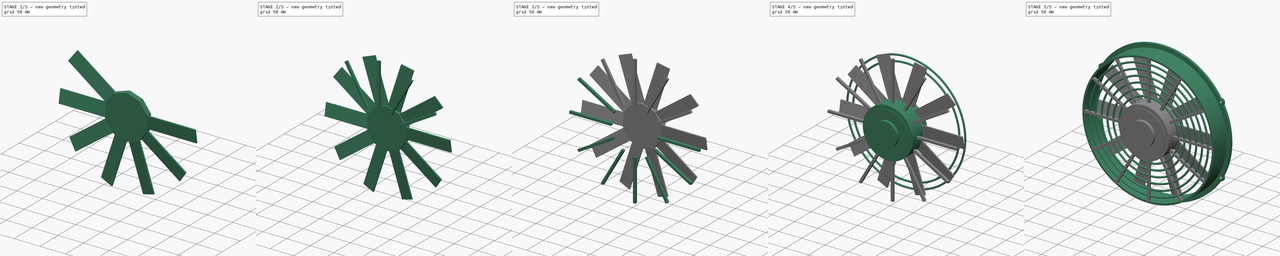
[diagram: build sequence overview — one tinted view per stage of 5, left to right]
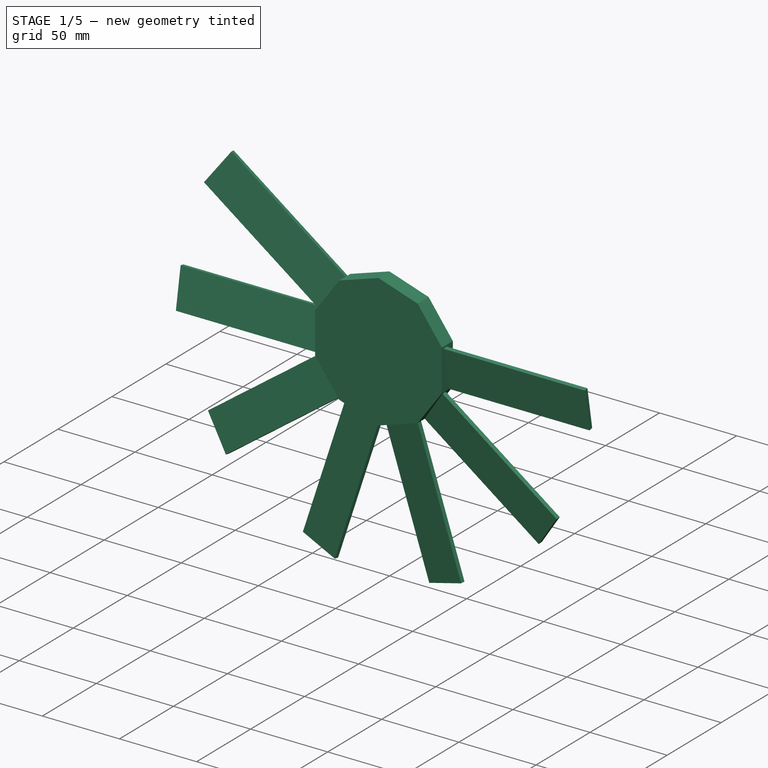
[diagram: stage 1 of 5 — iso view after this stage's code; geometry added in this stage tinted green]
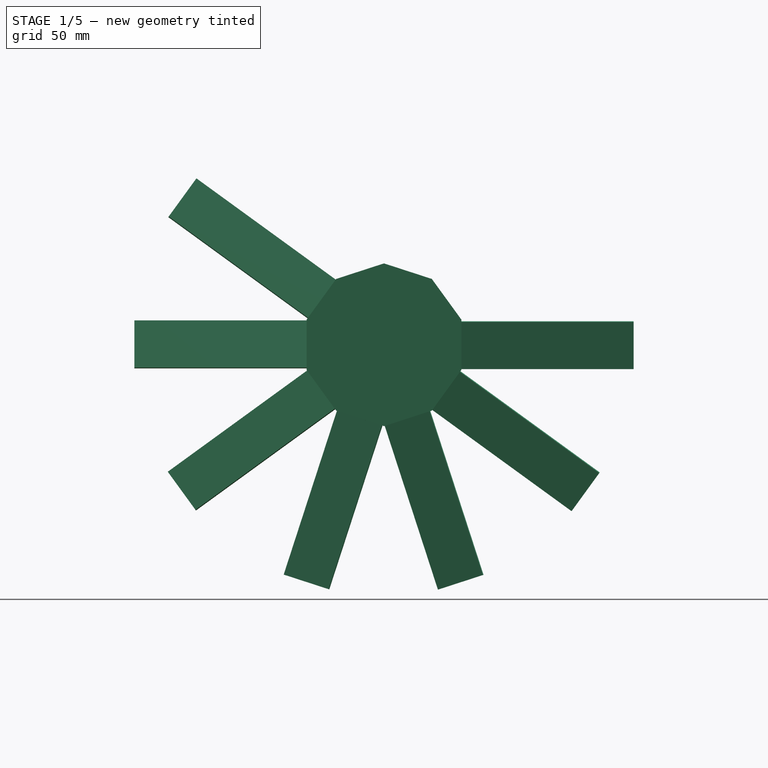
[diagram: stage 1 of 5 — front view after this stage's code; geometry added in this stage tinted green]
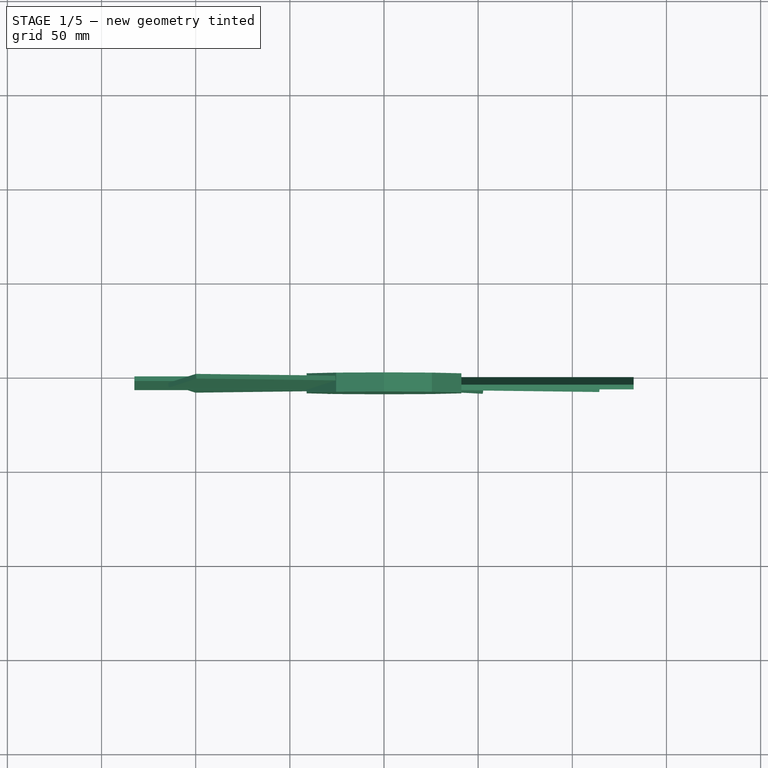
[diagram: stage 1 of 5 — top view after this stage's code; geometry added in this stage tinted green]
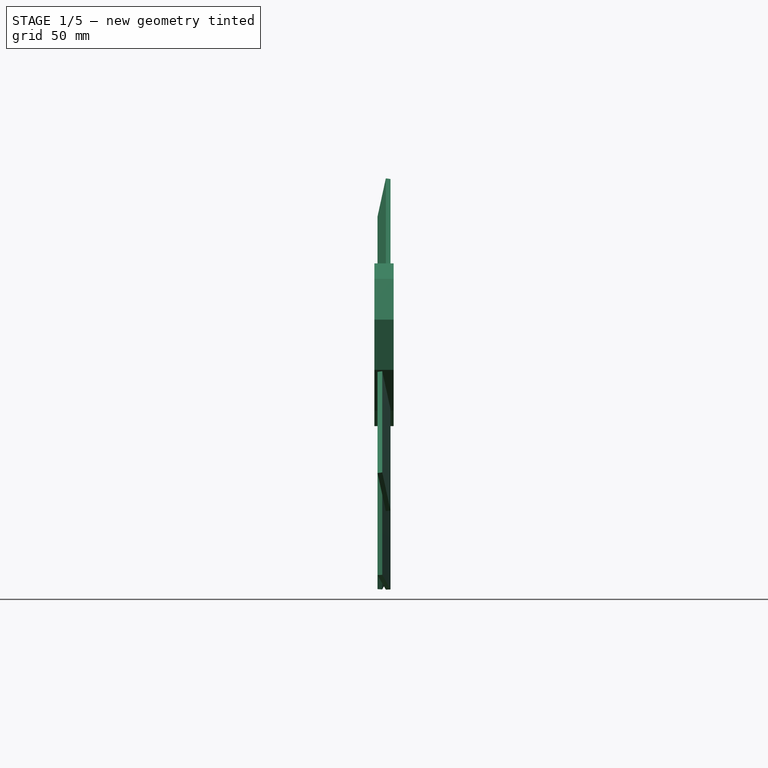
[diagram: stage 1 of 5 — right view after this stage's code; geometry added in this stage tinted green]
FCSTD DOCUMENT  (FreeCAD 0.16R6712 (Git))
Label: PC_fan_12inch
License: All rights reserved
LicenseURL: http://en.wikipedia.org/wiki/All_rights_reserved
objects: Sketcher::SketchObject×25, PartDesign::Pad×25, Part::MultiFuse×6, Part::Torus×6, Part::Cylinder×3
note: 90 computed .brp shape members not serialized (recipe doc carries the construction recipe); baked Part::Feature solids carry a one-line shape summary decoded from their .brp

FEATURE [Sketcher::SketchObject] Sketch014  label="blade_support_sketch"
  Placement = pos=(0,0,0) rot=(1,0,0;1.5708rad)
  sketch-geometry (22):
    g0: LineSegment [constr] StartX=0 StartY=-43.2131 StartZ=0 EndX=41.0981 EndY=-13.3536 EndZ=0
    g1: LineSegment [constr] StartX=41.0981 StartY=-13.3536 StartZ=0 EndX=25.4 EndY=34.9601 EndZ=0
    g2: LineSegment [constr] StartX=25.4 StartY=34.9601 StartZ=0 EndX=-25.4 EndY=34.9601 EndZ=0
    g3: LineSegment [constr] StartX=-25.4 StartY=34.9601 StartZ=0 EndX=-41.0981 EndY=-13.3536 EndZ=0
    g4: LineSegment [constr] StartX=-41.0981 StartY=-13.3536 StartZ=0 EndX=0 EndY=-43.2131 EndZ=0
    g5: Circle [constr] CenterX=0 CenterY=0 CenterZ=0 NormalX=0 NormalY=0 NormalZ=1 Radius=43.2131
    g6: LineSegment [constr] StartX=0 StartY=43.2131 StartZ=0 EndX=-41.0981 EndY=13.3536 EndZ=0
    g7: LineSegment [constr] StartX=-41.0981 StartY=13.3536 StartZ=0 EndX=-25.4 EndY=-34.9601 EndZ=0
    g8: LineSegment [constr] StartX=-25.4 StartY=-34.9601 StartZ=0 EndX=25.4 EndY=-34.9601 EndZ=0
    g9: LineSegment [constr] StartX=25.4 StartY=-34.9601 StartZ=0 EndX=41.0981 EndY=13.3536 EndZ=0
    g10: LineSegment [constr] StartX=41.0981 StartY=13.3536 StartZ=0 EndX=0 EndY=43.2131 EndZ=0
    g11: Circle [constr] CenterX=0 CenterY=0 CenterZ=0 NormalX=0 NormalY=0 NormalZ=1 Radius=43.2131
    g12: LineSegment StartX=0 StartY=43.2131 StartZ=0 EndX=25.4 EndY=34.9601 EndZ=0
    g13: LineSegment StartX=25.4 StartY=34.9601 StartZ=0 EndX=41.0981 EndY=13.3536 EndZ=0
    g14: LineSegment StartX=41.0981 StartY=13.3536 StartZ=0 EndX=41.0981 EndY=-13.3536 EndZ=0
    g15: LineSegment StartX=41.0981 StartY=-13.3536 StartZ=0 EndX=25.4 EndY=-34.9601 EndZ=0
    g16: LineSegment StartX=25.4 StartY=-34.9601 StartZ=0 EndX=0 EndY=-43.2131 EndZ=0
    g17: LineSegment StartX=0 StartY=-43.2131 StartZ=0 EndX=-25.4 EndY=-34.9601 EndZ=0
    g18: LineSegment StartX=-25.4 StartY=-34.9601 StartZ=0 EndX=-41.0981 EndY=-13.3536 EndZ=0
    g19: LineSegment StartX=-41.0981 StartY=-13.3536 StartZ=0 EndX=-41.0981 EndY=13.3536 EndZ=0
    g20: LineSegment StartX=-41.0981 StartY=13.3536 StartZ=0 EndX=-25.4 EndY=34.9601 EndZ=0
    g21: LineSegment StartX=-25.4 StartY=34.9601 StartZ=0 EndX=0 EndY=43.2131 EndZ=0
  constraints (48):
    c: Coincident(g0,g1)
    c: Coincident(g1,g2)
    c: Coincident(g2,g3)
    c: Coincident(g3,g4)
    c: Coincident(g4,g0)
    c: Equal(g0, g1-g4) x4
    c: PointOnObject(g0,g5)
    c: PointOnObject(g1,g5)
    c: PointOnObject(g2,g5)
    c: PointOnObject(g3,g5)
    c: PointOnObject(g4,g5)
    c: Coincident(g5,g-1)
    c: PointOnObject(g0,g-2)
    c: Distance(g2) = 50.8
    c: Coincident(g6,g7)
    c: Coincident(g7,g8)
    c: Coincident(g8,g9)
    c: Coincident(g9,g10)
    c: Coincident(g10,g6)
    c: Equal(g6, g7-g10) x4
    c: PointOnObject(g6,g11)
    c: PointOnObject(g7,g11)
    c: PointOnObject(g8,g11)
    c: PointOnObject(g9,g11)
    c: PointOnObject(g10,g11)
    c: Coincident(g11,g-1)
    c: PointOnObject(g6,g-2)
    c: Equal(g2,g10)
    c: Coincident(g12,g6)
    c: Coincident(g12,g1)
    c: Coincident(g13,g1)
    c: Coincident(g13,g9)
    c: Coincident(g14,g9)
    c: Coincident(g14,g0)
    c: Coincident(g15,g0)
    c: Coincident(g15,g8)
    c: Coincident(g16,g8)
    c: Coincident(g16,g0)
    c: Coincident(g17,g0)
    c: Coincident(g17,g7)
    c: Coincident(g18,g7)
    c: Coincident(g18,g3)
    c: Coincident(g19,g3)
    c: Coincident(g19,g6)
    c: Coincident(g20,g6)
    c: Coincident(g20,g2)
    c: Coincident(g21,g2)
    c: Coincident(g21,g6)
FEATURE [PartDesign::Pad] Pad001014  label="blade_support_pad"
  Length = 10.16
  Length2 = 100
  Placement = pos=(0,0,0) rot=(1,0,0;1.5708rad)
  Sketch = -> Sketch014
  Type = 0
FEATURE [PartDesign::Pad] Pad004  label="blade_pad_04"
  Length = 91.44
  Length2 = 100
  Placement = pos=(0,0,0) rot=(1,0,0;1.5708rad)
  Sketch = -> Sketch018
  Type = 0
FEATURE [PartDesign::Pad] Pad005  label="blade_pad_05"
  Length = 91.44
  Length2 = 100
  Placement = pos=(0,0,0) rot=(1,0,0;1.5708rad)
  Sketch = -> Sketch019
  Type = 0
FEATURE [PartDesign::Pad] Pad006  label="blade_pad_06"
  Length = 91.44
  Length2 = 100
  Placement = pos=(0,0,0) rot=(1,0,0;1.5708rad)
  Sketch = -> Sketch020
  Type = 0
FEATURE [PartDesign::Pad] Pad007  label="blade_pad_07"
  Length = 91.44
  Length2 = 100
  Placement = pos=(0,0,0) rot=(1,0,0;1.5708rad)
  Sketch = -> Sketch021
  Type = 0
FEATURE [PartDesign::Pad] Pad008  label="blade_pad_08"
  Length = 91.44
  Length2 = 100
  Placement = pos=(0,0,0) rot=(1,0,0;1.5708rad)
  Sketch = -> Sketch022
  Type = 0
FEATURE [PartDesign::Pad] Pad009  label="blade_pad_09"
  Length = 91.44
  Length2 = 100
  Placement = pos=(0,0,0) rot=(1,0,0;1.5708rad)
  Sketch = -> Sketch023
  Type = 0
FEATURE [PartDesign::Pad] Pad010  label="blade_pad_010"
  Length = 91.44
  Length2 = 100
  Placement = pos=(0,0,0) rot=(1,0,0;1.5708rad)
  Sketch = -> Sketch024
  Type = 0
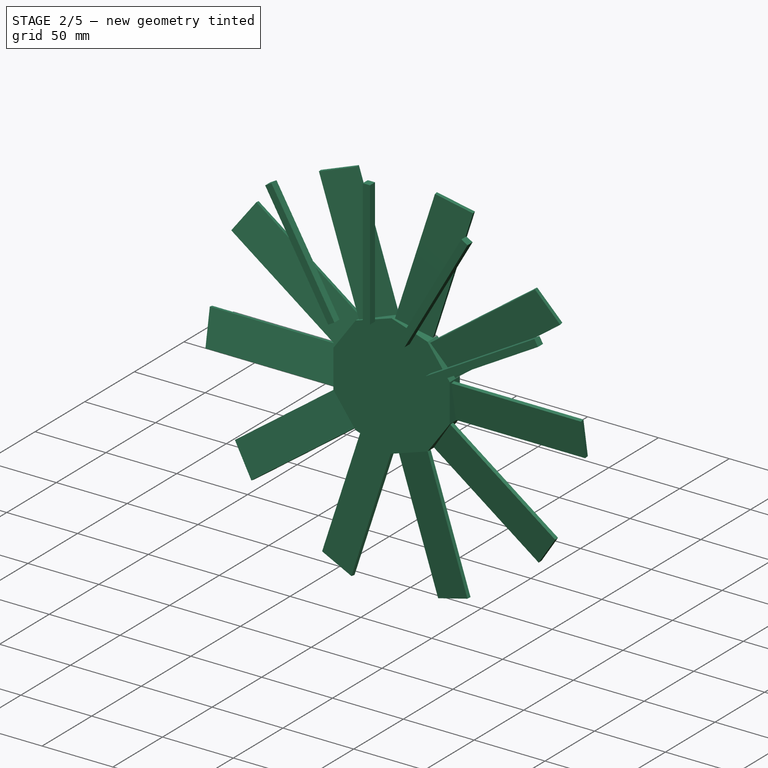
[diagram: stage 2 of 5 — iso view after this stage's code; geometry added in this stage tinted green]
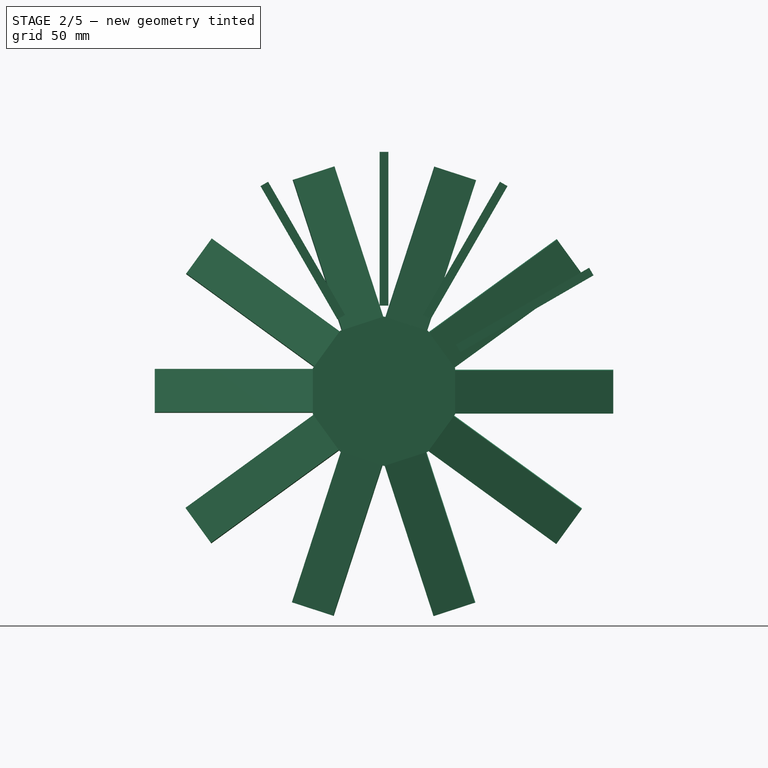
[diagram: stage 2 of 5 — front view after this stage's code; geometry added in this stage tinted green]
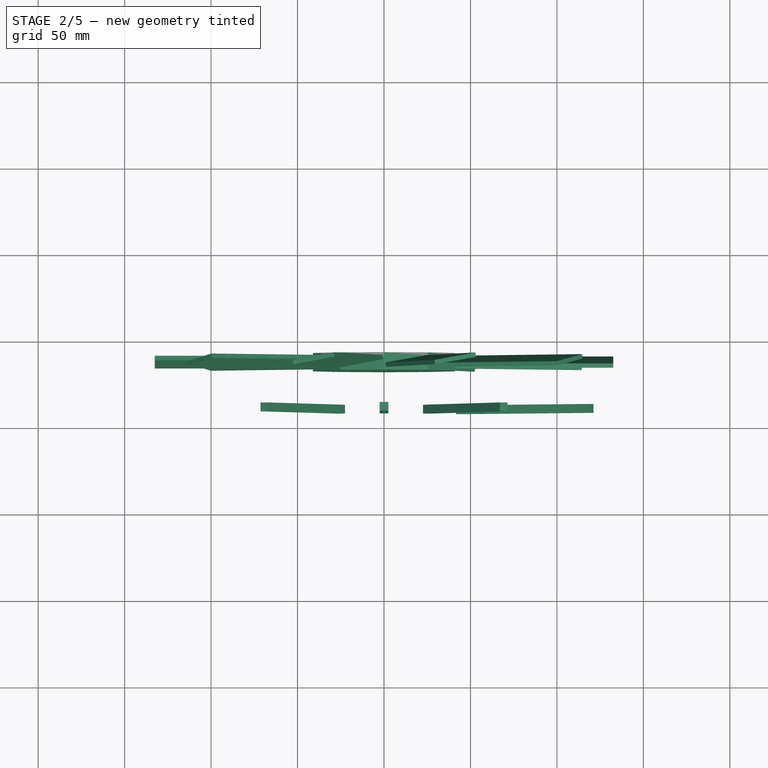
[diagram: stage 2 of 5 — top view after this stage's code; geometry added in this stage tinted green]
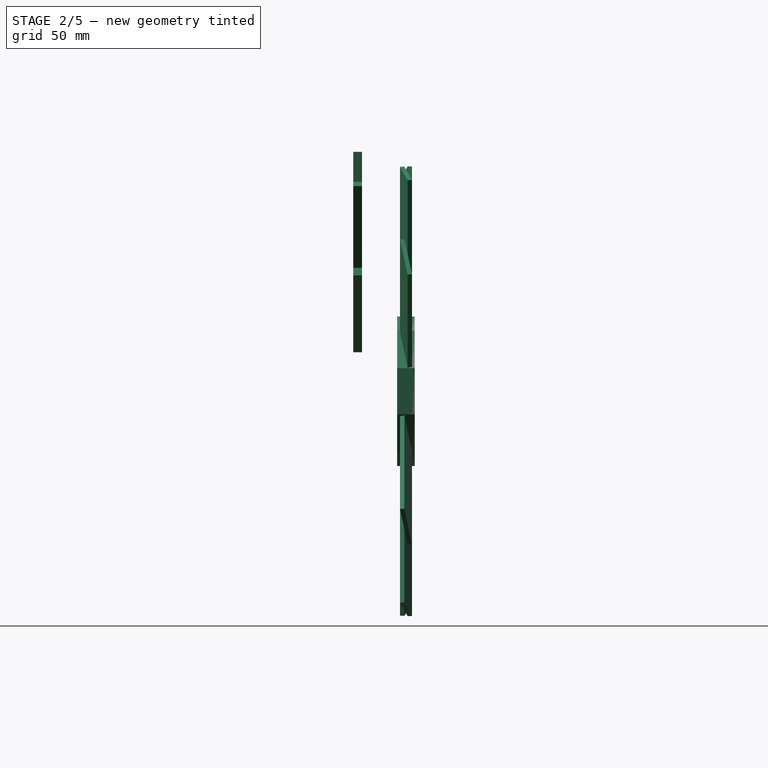
[diagram: stage 2 of 5 — right view after this stage's code; geometry added in this stage tinted green]
FEATURE [Sketcher::SketchObject] Sketch010  label="spoke_sketch_09"
  Placement = pos=(0,-39.37,0) rot=(1,0,0;1.5708rad)
  sketch-geometry (6):
    g0: LineSegment StartX=-26.9647 StartY=41.6242 StartZ=0 EndX=-71.4147 EndY=118.614 EndZ=0
    g1: LineSegment StartX=-71.4147 StartY=118.614 StartZ=0 EndX=-67.0153 EndY=121.154 EndZ=0
    g2: LineSegment StartX=-67.0153 StartY=121.154 StartZ=0 EndX=-22.5653 EndY=44.1642 EndZ=0
    g3: LineSegment StartX=-22.5653 StartY=44.1642 StartZ=0 EndX=-26.9647 EndY=41.6242 EndZ=0
    g4: GeomPoint [constr] X=-24.765 Y=42.8942 Z=0
    g5: LineSegment [constr] StartX=0 StartY=0 StartZ=0 EndX=-24.765 EndY=42.8942 EndZ=0
  constraints (16):
    c: Coincident(g0,g1)
    c: Coincident(g1,g2)
    c: Coincident(g2,g3)
    c: Coincident(g3,g0)
    c: Symmetric(g0,g2,g4)
    c: Distance(g3) = 5.08
    c: Coincident(g5,g-1)
    c: Distance(g5) = 49.53
    c: Coincident(g4,g5)
    c: Distance(g0) = 88.9
    c: Parallel(g5,g0)
    c: Parallel(g0,g2)
    c: Equal(g1,g3)
    c: Perpendicular(g2,g3)
    c: Equal(g0,g2)
    c: Angle(g5) = -4.18879
FEATURE [PartDesign::Pad] Pad001010  label="spoke_pad09"
  Length = 5.08
  Length2 = 100
  Placement = pos=(0,-39.37,0) rot=(1,0,0;1.5708rad)
  Sketch = -> Sketch010
  Type = 0
FEATURE [Sketcher::SketchObject] Sketch011  label="spoke_sketch_10"
  Placement = pos=(0,-39.37,0) rot=(1,0,0;1.5708rad)
  sketch-geometry (6):
    g0: LineSegment StartX=-2.54 StartY=49.53 StartZ=0 EndX=-2.54 EndY=138.43 EndZ=0
    g1: LineSegment StartX=-2.54 StartY=138.43 StartZ=0 EndX=2.54 EndY=138.43 EndZ=0
    g2: LineSegment StartX=2.54 StartY=138.43 StartZ=0 EndX=2.54 EndY=49.53 EndZ=0
    g3: LineSegment StartX=2.54 StartY=49.53 StartZ=0 EndX=-2.54 EndY=49.53 EndZ=0
    g4: GeomPoint [constr] X=0 Y=49.53 Z=0
    g5: LineSegment [constr] StartX=0 StartY=0 StartZ=0 EndX=0 EndY=49.53 EndZ=0
  constraints (16):
    c: Coincident(g0,g1)
    c: Coincident(g1,g2)
    c: Coincident(g2,g3)
    c: Coincident(g3,g0)
    c: Symmetric(g0,g2,g4)
    c: Distance(g3) = 5.08
    c: Coincident(g5,g-1)
    c: Distance(g5) = 49.53
    c: Coincident(g4,g5)
    c: Distance(g0) = 88.9
    c: Parallel(g5,g0)
    c: Parallel(g0,g2)
    c: Equal(g1,g3)
    c: Perpendicular(g2,g3)
    c: Equal(g0,g2)
    c: Angle(g5) = -4.71239
FEATURE [PartDesign::Pad] Pad001011  label="spoke_pad10"
  Length = 5.08
  Length2 = 100
  Placement = pos=(0,-39.37,0) rot=(1,0,0;1.5708rad)
  Sketch = -> Sketch011
  Type = 0
FEATURE [Sketcher::SketchObject] Sketch012  label="spoke_sketch_11"
  Placement = pos=(0,-39.37,0) rot=(1,0,0;1.5708rad)
  sketch-geometry (6):
    g0: LineSegment StartX=22.5653 StartY=44.1642 StartZ=0 EndX=67.0153 EndY=121.154 EndZ=0
    g1: LineSegment StartX=67.0153 StartY=121.154 StartZ=0 EndX=71.4147 EndY=118.614 EndZ=0
    g2: LineSegment StartX=71.4147 StartY=118.614 StartZ=0 EndX=26.9647 EndY=41.6242 EndZ=0
    g3: LineSegment StartX=26.9647 StartY=41.6242 StartZ=0 EndX=22.5653 EndY=44.1642 EndZ=0
    g4: GeomPoint [constr] X=24.765 Y=42.8942 Z=0
    g5: LineSegment [constr] StartX=0 StartY=0 StartZ=0 EndX=24.765 EndY=42.8942 EndZ=0
  constraints (16):
    c: Coincident(g0,g1)
    c: Coincident(g1,g2)
    c: Coincident(g2,g3)
    c: Coincident(g3,g0)
    c: Symmetric(g0,g2,g4)
    c: Distance(g3) = 5.08
    c: Coincident(g5,g-1)
    c: Distance(g5) = 49.53
    c: Coincident(g4,g5)
    c: Distance(g0) = 88.9
    c: Parallel(g5,g0)
    c: Parallel(g0,g2)
    c: Equal(g1,g3)
    c: Perpendicular(g2,g3)
    c: Equal(g0,g2)
    c: Angle(g5) = -5.23599
FEATURE [PartDesign::Pad] Pad001012  label="spoke_pad11"
  Length = 5.08
  Length2 = 100
  Placement = pos=(0,-39.37,0) rot=(1,0,0;1.5708rad)
  Sketch = -> Sketch012
  Type = 0
FEATURE [Sketcher::SketchObject] Sketch013  label="spoke_sketch_12"
  Placement = pos=(0,-39.37,0) rot=(1,0,0;1.5708rad)
  sketch-geometry (6):
    g0: LineSegment StartX=41.6242 StartY=26.9647 StartZ=0 EndX=118.614 EndY=71.4147 EndZ=0
    g1: LineSegment StartX=118.614 StartY=71.4147 StartZ=0 EndX=121.154 EndY=67.0153 EndZ=0
    g2: LineSegment StartX=121.154 StartY=67.0153 StartZ=0 EndX=44.1642 EndY=22.5653 EndZ=0
    g3: LineSegment StartX=44.1642 StartY=22.5653 StartZ=0 EndX=41.6242 EndY=26.9647 EndZ=0
    g4: GeomPoint [constr] X=42.8942 Y=24.765 Z=0
    g5: LineSegment [constr] StartX=0 StartY=0 StartZ=0 EndX=42.8942 EndY=24.765 EndZ=0
  constraints (16):
    c: Coincident(g0,g1)
    c: Coincident(g1,g2)
    c: Coincident(g2,g3)
    c: Coincident(g3,g0)
    c: Symmetric(g0,g2,g4)
    c: Distance(g3) = 5.08
    c: Coincident(g5,g-1)
    c: Distance(g5) = 49.53
    c: Coincident(g4,g5)
    c: Distance(g0) = 88.9
    c: Parallel(g5,g0)
    c: Parallel(g0,g2)
    c: Equal(g1,g3)
    c: Perpendicular(g2,g3)
    c: Equal(g0,g2)
    c: Angle(g5) = -5.75959
FEATURE [PartDesign::Pad] Pad001013  label="spoke_pad12"
  Length = 5.08
  Length2 = 100
  Placement = pos=(0,-39.37,0) rot=(1,0,0;1.5708rad)
  Sketch = -> Sketch013
  Type = 0
FEATURE [Sketcher::SketchObject] Sketch015  label="blade_sketch_01"
  Placement = pos=(33.249,0,24.1568) rot=(0.45399,0,0.891007;3.14159rad)
  Support = -> Pad001014 [Face2]
  sketch-geometry (6):
    g0: LineSegment StartX=-12.9481 StartY=4.10608 StartZ=0 EndX=12.066 EndY=8.51674 EndZ=0
    g1: LineSegment StartX=-12.5071 StartY=1.60467 StartZ=0 EndX=12.5071 EndY=6.01533 EndZ=0
    g2: LineSegment StartX=12.066 StartY=8.51674 StartZ=0 EndX=12.5071 EndY=6.01533 EndZ=0
    g3: LineSegment StartX=-12.9481 StartY=4.10608 StartZ=0 EndX=-12.5071 EndY=1.60467 EndZ=0
    g4: GeomPoint [constr] X=0 Y=3.81 Z=0
    g5: LineSegment [constr] StartX=0 StartY=0 StartZ=0 EndX=0 EndY=3.81 EndZ=0
  constraints (16):
    c: Distance(g0) = 25.4
    c: Angle(g0) = 0.174533
    c: Equal(g1,g0)
    c: Coincident(g2,g0)
    c: Coincident(g2,g1)
    c: Coincident(g3,g0)
    c: Coincident(g3,g1)
    c: Equal(g2,g3)
    c: Perpendicular(g0,g2)
    c: Distance(g3) = 2.54
    c: PointOnObject(g4,g1)
    c: Symmetric(g1,g1,g4)
    c: Coincident(g5,g-1)
    c: Vertical(g5)
    c: Distance(g5) = 3.81
    c: Coincident(g4,g5)
FEATURE [Sketcher::SketchObject] Sketch016  label="blade_sketch_02"
  Placement = pos=(12.7,0,39.0866) rot=(0.156434,0,0.987688;3.14159rad)
  Support = -> Pad001014 [Face1]
  sketch-geometry (6):
    g0: LineSegment StartX=-12.9481 StartY=4.10608 StartZ=0 EndX=12.066 EndY=8.51674 EndZ=0
    g1: LineSegment StartX=-12.5071 StartY=1.60467 StartZ=0 EndX=12.5071 EndY=6.01533 EndZ=0
    g2: LineSegment StartX=12.066 StartY=8.51674 StartZ=0 EndX=12.5071 EndY=6.01533 EndZ=0
    g3: LineSegment StartX=-12.9481 StartY=4.10608 StartZ=0 EndX=-12.5071 EndY=1.60467 EndZ=0
    g4: GeomPoint [constr] X=0 Y=3.81 Z=0
    g5: LineSegment [constr] StartX=0 StartY=0 StartZ=0 EndX=0 EndY=3.81 EndZ=0
  constraints (16):
    c: Distance(g0) = 25.4
    c: Angle(g0) = 0.174533
    c: Equal(g1,g0)
    c: Coincident(g2,g0)
    c: Coincident(g2,g1)
    c: Coincident(g3,g0)
    c: Coincident(g3,g1)
    c: Equal(g2,g3)
    c: Perpendicular(g0,g2)
    c: Distance(g3) = 2.54
    c: PointOnObject(g4,g1)
    c: Symmetric(g1,g1,g4)
    c: Coincident(g5,g-1)
    c: Vertical(g5)
    c: Distance(g5) = 3.81
    c: Coincident(g4,g5)
FEATURE [Sketcher::SketchObject] Sketch017  label="blade_sketch_03"
  Placement = pos=(-12.7,0,39.0866) rot=(-0.156434,0,0.987688;3.14159rad)
  Support = -> Pad001014 [Face10]
  sketch-geometry (6):
    g0: LineSegment StartX=-12.9481 StartY=4.10608 StartZ=0 EndX=12.066 EndY=8.51674 EndZ=0
    g1: LineSegment StartX=-12.5071 StartY=1.60467 StartZ=0 EndX=12.5071 EndY=6.01533 EndZ=0
    g2: LineSegment StartX=12.066 StartY=8.51674 StartZ=0 EndX=12.5071 EndY=6.01533 EndZ=0
    g3: LineSegment StartX=-12.9481 StartY=4.10608 StartZ=0 EndX=-12.5071 EndY=1.60467 EndZ=0
    g4: GeomPoint [constr] X=0 Y=3.81 Z=0
    g5: LineSegment [constr] StartX=0 StartY=0 StartZ=0 EndX=0 EndY=3.81 EndZ=0
  constraints (16):
    c: Distance(g0) = 25.4
    c: Angle(g0) = 0.174533
    c: Equal(g1,g0)
    c: Coincident(g2,g0)
    c: Coincident(g2,g1)
    c: Coincident(g3,g0)
    c: Coincident(g3,g1)
    c: Equal(g2,g3)
    c: Perpendicular(g0,g2)
    c: Distance(g3) = 2.54
    c: PointOnObject(g4,g1)
    c: Symmetric(g1,g1,g4)
    c: Coincident(g5,g-1)
    c: Vertical(g5)
    c: Distance(g5) = 3.81
    c: Coincident(g4,g5)
FEATURE [Sketcher::SketchObject] Sketch018  label="blade_sketch_04"
  Placement = pos=(-33.249,0,24.1568) rot=(-0.45399,0,0.891007;3.14159rad)
  Support = -> Pad001014 [Face9]
  sketch-geometry (6):
    g0: LineSegment StartX=-12.9481 StartY=4.10608 StartZ=0 EndX=12.066 EndY=8.51674 EndZ=0
    g1: LineSegment StartX=-12.5071 StartY=1.60467 StartZ=0 EndX=12.5071 EndY=6.01533 EndZ=0
    g2: LineSegment StartX=12.066 StartY=8.51674 StartZ=0 EndX=12.5071 EndY=6.01533 EndZ=0
    g3: LineSegment StartX=-12.9481 StartY=4.10608 StartZ=0 EndX=-12.5071 EndY=1.60467 EndZ=0
    g4: GeomPoint [constr] X=0 Y=3.81 Z=0
    g5: LineSegment [constr] StartX=0 StartY=0 StartZ=0 EndX=0 EndY=3.81 EndZ=0
  constraints (16):
    c: Distance(g0) = 25.4
    c: Angle(g0) = 0.174533
    c: Equal(g1,g0)
    c: Coincident(g2,g0)
    c: Coincident(g2,g1)
    c: Coincident(g3,g0)
    c: Coincident(g3,g1)
    c: Equal(g2,g3)
    c: Perpendicular(g0,g2)
    c: Distance(g3) = 2.54
    c: PointOnObject(g4,g1)
    c: Symmetric(g1,g1,g4)
    c: Coincident(g5,g-1)
    c: Vertical(g5)
    c: Distance(g5) = 3.81
    c: Coincident(g4,g5)
FEATURE [Sketcher::SketchObject] Sketch019  label="blade_sketch_05"
  Placement = pos=(-41.0981,0,-3e-12) rot=(0.707107,0,-0.707107;3.14159rad)
  Support = -> Pad001014 [Face8]
  sketch-geometry (6):
    g0: LineSegment StartX=-12.9481 StartY=4.10608 StartZ=0 EndX=12.066 EndY=8.51674 EndZ=0
    g1: LineSegment StartX=-12.5071 StartY=1.60467 StartZ=0 EndX=12.5071 EndY=6.01533 EndZ=0
    g2: LineSegment StartX=12.066 StartY=8.51674 StartZ=0 EndX=12.5071 EndY=6.01533 EndZ=0
    g3: LineSegment StartX=-12.9481 StartY=4.10608 StartZ=0 EndX=-12.5071 EndY=1.60467 EndZ=0
    g4: GeomPoint [constr] X=0 Y=3.81 Z=0
    g5: LineSegment [constr] StartX=0 StartY=0 StartZ=0 EndX=0 EndY=3.81 EndZ=0
  constraints (16):
    c: Distance(g0) = 25.4
    c: Angle(g0) = 0.174533
    c: Equal(g1,g0)
    c: Coincident(g2,g0)
    c: Coincident(g2,g1)
    c: Coincident(g3,g0)
    c: Coincident(g3,g1)
    c: Equal(g2,g3)
    c: Perpendicular(g0,g2)
    c: Distance(g3) = 2.54
    c: PointOnObject(g4,g1)
    c: Symmetric(g1,g1,g4)
    c: Coincident(g5,g-1)
    c: Vertical(g5)
    c: Distance(g5) = 3.81
    c: Coincident(g4,g5)
FEATURE [Sketcher::SketchObject] Sketch020  label="blade_sketch_06"
  Placement = pos=(-33.249,0,-24.1568) rot=(0.891007,0,-0.45399;3.14159rad)
  Support = -> Pad001014 [Face7]
  sketch-geometry (6):
    g0: LineSegment StartX=-12.9481 StartY=4.10608 StartZ=0 EndX=12.066 EndY=8.51674 EndZ=0
    g1: LineSegment StartX=-12.5071 StartY=1.60467 StartZ=0 EndX=12.5071 EndY=6.01533 EndZ=0
    g2: LineSegment StartX=12.066 StartY=8.51674 StartZ=0 EndX=12.5071 EndY=6.01533 EndZ=0
    g3: LineSegment StartX=-12.9481 StartY=4.10608 StartZ=0 EndX=-12.5071 EndY=1.60467 EndZ=0
    g4: GeomPoint [constr] X=0 Y=3.81 Z=0
    g5: LineSegment [constr] StartX=0 StartY=0 StartZ=0 EndX=0 EndY=3.81 EndZ=0
  constraints (16):
    c: Distance(g0) = 25.4
    c: Angle(g0) = 0.174533
    c: Equal(g1,g0)
    c: Coincident(g2,g0)
    c: Coincident(g2,g1)
    c: Coincident(g3,g0)
    c: Coincident(g3,g1)
    c: Equal(g2,g3)
    c: Perpendicular(g0,g2)
    c: Distance(g3) = 2.54
    c: PointOnObject(g4,g1)
    c: Symmetric(g1,g1,g4)
    c: Coincident(g5,g-1)
    c: Vertical(g5)
    c: Distance(g5) = 3.81
    c: Coincident(g4,g5)
FEATURE [Sketcher::SketchObject] Sketch021  label="blade_sketch_07"
  Placement = pos=(-12.7,0,-39.0866) rot=(0.987688,0,-0.156434;3.14159rad)
  Support = -> Pad001014 [Face6]
  sketch-geometry (6):
    g0: LineSegment StartX=-12.9481 StartY=4.10608 StartZ=0 EndX=12.066 EndY=8.51674 EndZ=0
    g1: LineSegment StartX=-12.5071 StartY=1.60467 StartZ=0 EndX=12.5071 EndY=6.01533 EndZ=0
    g2: LineSegment StartX=12.066 StartY=8.51674 StartZ=0 EndX=12.5071 EndY=6.01533 EndZ=0
    g3: LineSegment StartX=-12.9481 StartY=4.10608 StartZ=0 EndX=-12.5071 EndY=1.60467 EndZ=0
    g4: GeomPoint [constr] X=0 Y=3.81 Z=0
    g5: LineSegment [constr] StartX=0 StartY=0 StartZ=0 EndX=0 EndY=3.81 EndZ=0
  constraints (16):
    c: Distance(g0) = 25.4
    c: Angle(g0) = 0.174533
    c: Equal(g1,g0)
    c: Coincident(g2,g0)
    c: Coincident(g2,g1)
    c: Coincident(g3,g0)
    c: Coincident(g3,g1)
    c: Equal(g2,g3)
    c: Perpendicular(g0,g2)
    c: Distance(g3) = 2.54
    c: PointOnObject(g4,g1)
    c: Symmetric(g1,g1,g4)
    c: Coincident(g5,g-1)
    c: Vertical(g5)
    c: Distance(g5) = 3.81
    c: Coincident(g4,g5)
FEATURE [Sketcher::SketchObject] Sketch022  label="blade_sketch_08"
  Placement = pos=(12.7,0,-39.0866) rot=(0.987688,0,0.156434;3.14159rad)
  Support = -> Pad001014 [Face5]
  sketch-geometry (6):
    g0: LineSegment StartX=-12.9481 StartY=4.10608 StartZ=0 EndX=12.066 EndY=8.51674 EndZ=0
    g1: LineSegment StartX=-12.5071 StartY=1.60467 StartZ=0 EndX=12.5071 EndY=6.01533 EndZ=0
    g2: LineSegment StartX=12.066 StartY=8.51674 StartZ=0 EndX=12.5071 EndY=6.01533 EndZ=0
    g3: LineSegment StartX=-12.9481 StartY=4.10608 StartZ=0 EndX=-12.5071 EndY=1.60467 EndZ=0
    g4: GeomPoint [constr] X=0 Y=3.81 Z=0
    g5: LineSegment [constr] StartX=0 StartY=0 StartZ=0 EndX=0 EndY=3.81 EndZ=0
  constraints (16):
    c: Distance(g0) = 25.4
    c: Angle(g0) = 0.174533
    c: Equal(g1,g0)
    c: Coincident(g2,g0)
    c: Coincident(g2,g1)
    c: Coincident(g3,g0)
    c: Coincident(g3,g1)
    c: Equal(g2,g3)
    c: Perpendicular(g0,g2)
    c: Distance(g3) = 2.54
    c: PointOnObject(g4,g1)
    c: Symmetric(g1,g1,g4)
    c: Coincident(g5,g-1)
    c: Vertical(g5)
    c: Distance(g5) = 3.81
    c: Coincident(g4,g5)
FEATURE [Sketcher::SketchObject] Sketch023  label="blade_sketch_09"
  Placement = pos=(33.249,0,-24.1568) rot=(0.891007,0,0.45399;3.14159rad)
  Support = -> Pad001014 [Face4]
  sketch-geometry (6):
    g0: LineSegment StartX=-12.9481 StartY=4.10608 StartZ=0 EndX=12.066 EndY=8.51674 EndZ=0
    g1: LineSegment StartX=-12.5071 StartY=1.60467 StartZ=0 EndX=12.5071 EndY=6.01533 EndZ=0
    g2: LineSegment StartX=12.066 StartY=8.51674 StartZ=0 EndX=12.5071 EndY=6.01533 EndZ=0
    g3: LineSegment StartX=-12.9481 StartY=4.10608 StartZ=0 EndX=-12.5071 EndY=1.60467 EndZ=0
    g4: GeomPoint [constr] X=0 Y=3.81 Z=0
    g5: LineSegment [constr] StartX=0 StartY=0 StartZ=0 EndX=0 EndY=3.81 EndZ=0
  constraints (16):
    c: Distance(g0) = 25.4
    c: Angle(g0) = 0.174533
    c: Equal(g1,g0)
    c: Coincident(g2,g0)
    c: Coincident(g2,g1)
    c: Coincident(g3,g0)
    c: Coincident(g3,g1)
    c: Equal(g2,g3)
    c: Perpendicular(g0,g2)
    c: Distance(g3) = 2.54
    c: PointOnObject(g4,g1)
    c: Symmetric(g1,g1,g4)
    c: Coincident(g5,g-1)
    c: Vertical(g5)
    c: Distance(g5) = 3.81
    c: Coincident(g4,g5)
FEATURE [Sketcher::SketchObject] Sketch024  label="blade_sketch_010"
  Placement = pos=(41.0981,0,-2e-12) rot=(0.707107,0,0.707107;3.14159rad)
  Support = -> Pad001014 [Face3]
  sketch-geometry (6):
    g0: LineSegment StartX=-12.9481 StartY=4.10608 StartZ=0 EndX=12.066 EndY=8.51674 EndZ=0
    g1: LineSegment StartX=-12.5071 StartY=1.60467 StartZ=0 EndX=12.5071 EndY=6.01533 EndZ=0
    g2: LineSegment StartX=12.066 StartY=8.51674 StartZ=0 EndX=12.5071 EndY=6.01533 EndZ=0
    g3: LineSegment StartX=-12.9481 StartY=4.10608 StartZ=0 EndX=-12.5071 EndY=1.60467 EndZ=0
    g4: GeomPoint [constr] X=0 Y=3.81 Z=0
    g5: LineSegment [constr] StartX=0 StartY=0 StartZ=0 EndX=0 EndY=3.81 EndZ=0
  constraints (16):
    c: Distance(g0) = 25.4
    c: Angle(g0) = 0.174533
    c: Equal(g1,g0)
    c: Coincident(g2,g0)
    c: Coincident(g2,g1)
    c: Coincident(g3,g0)
    c: Coincident(g3,g1)
    c: Equal(g2,g3)
    c: Perpendicular(g0,g2)
    c: Distance(g3) = 2.54
    c: PointOnObject(g4,g1)
    c: Symmetric(g1,g1,g4)
    c: Coincident(g5,g-1)
    c: Vertical(g5)
    c: Distance(g5) = 3.81
    c: Coincident(g4,g5)
FEATURE [PartDesign::Pad] Pad001015  label="blade_pad_01"
  Length = 91.44
  Length2 = 100
  Placement = pos=(0,0,0) rot=(1,0,0;1.5708rad)
  Sketch = -> Sketch015
  Type = 0
FEATURE [PartDesign::Pad] Pad002  label="blade_pad_02"
  Length = 91.44
  Length2 = 100
  Placement = pos=(0,0,0) rot=(1,0,0;1.5708rad)
  Sketch = -> Sketch016
  Type = 0
FEATURE [PartDesign::Pad] Pad003  label="blade_pad_03"
  Length = 91.44
  Length2 = 100
  Placement = pos=(0,0,0) rot=(1,0,0;1.5708rad)
  Sketch = -> Sketch017
  Type = 0
FEATURE [Part::MultiFuse] Fusion002002002  label="blade_fusion"
  Placement = pos=(0,-8.89,0) rot=(0,0,1;0rad)
  Shapes = -> [Pad010,Pad009,Pad008,Pad007,Pad006,Pad005,Pad004,Pad003,Pad002,Pad001015]
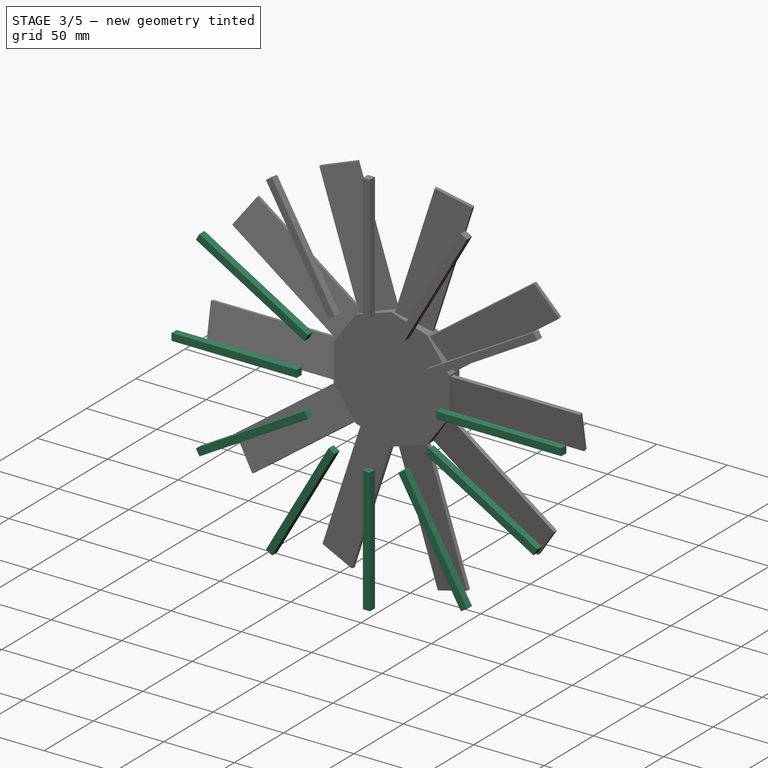
[diagram: stage 3 of 5 — iso view after this stage's code; geometry added in this stage tinted green]
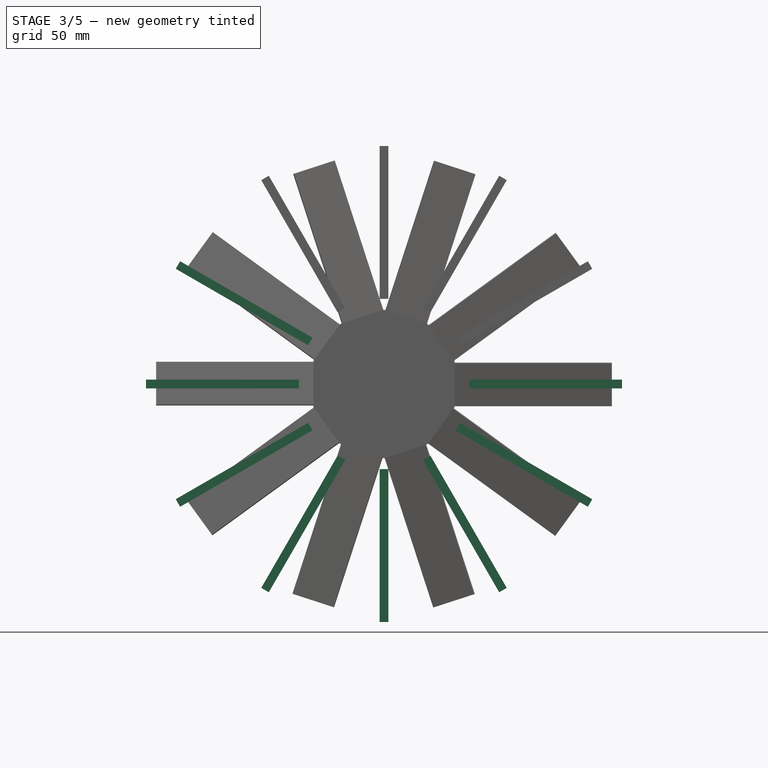
[diagram: stage 3 of 5 — front view after this stage's code; geometry added in this stage tinted green]
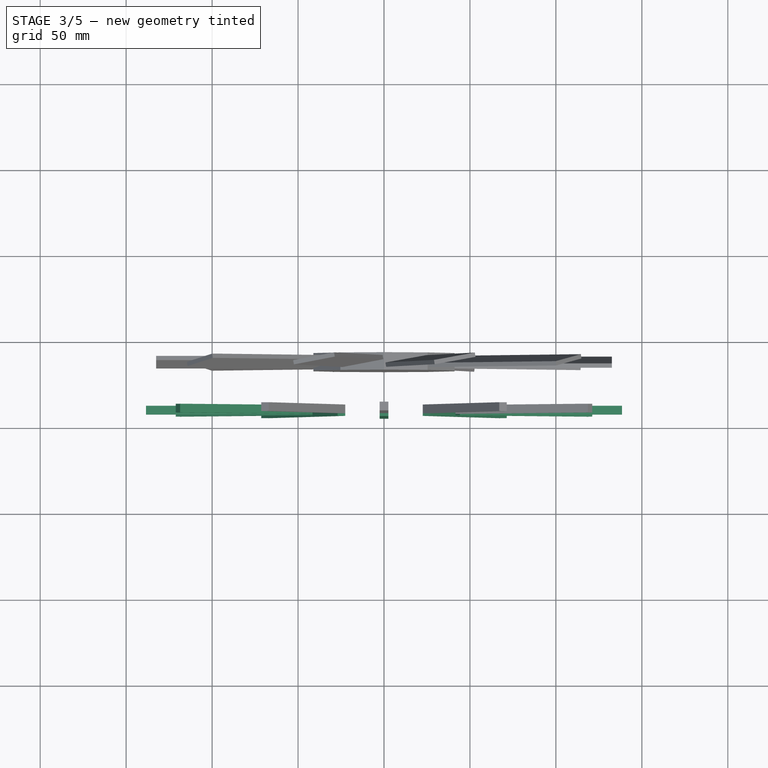
[diagram: stage 3 of 5 — top view after this stage's code; geometry added in this stage tinted green]
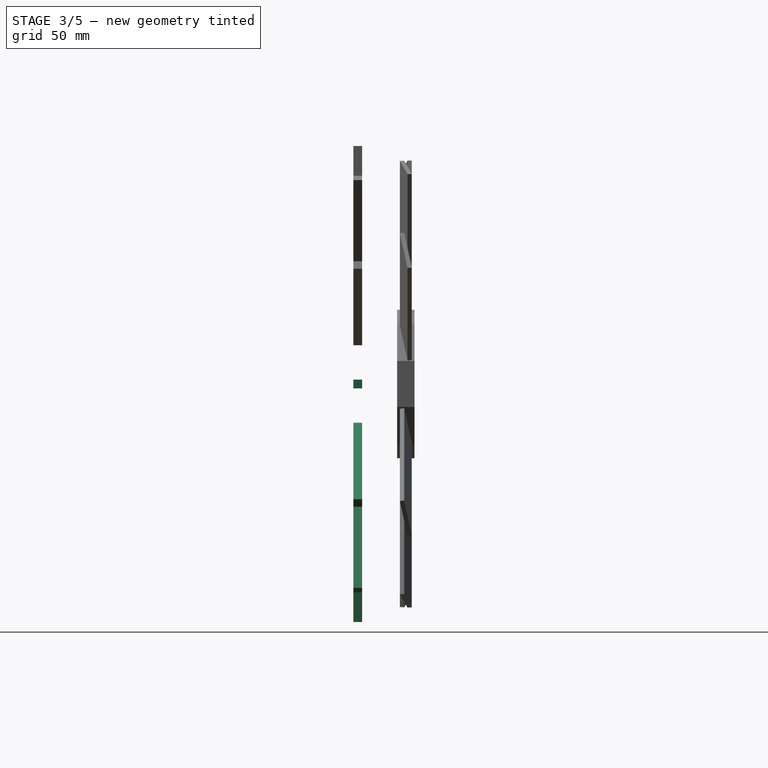
[diagram: stage 3 of 5 — right view after this stage's code; geometry added in this stage tinted green]
FEATURE [Sketcher::SketchObject] Sketch002  label="spoke_sketch01"
  Placement = pos=(0,-39.37,0) rot=(1,0,0;1.5708rad)
  sketch-geometry (6):
    g0: LineSegment StartX=49.53 StartY=2.54 StartZ=0 EndX=138.43 EndY=2.54 EndZ=0
    g1: LineSegment StartX=138.43 StartY=2.54 StartZ=0 EndX=138.43 EndY=-2.54 EndZ=0
    g2: LineSegment StartX=138.43 StartY=-2.54 StartZ=0 EndX=49.53 EndY=-2.54 EndZ=0
    g3: LineSegment StartX=49.53 StartY=-2.54 StartZ=0 EndX=49.53 EndY=2.54 EndZ=0
    g4: GeomPoint [constr] X=49.53 Y=0 Z=0
    g5: LineSegment [constr] StartX=0 StartY=0 StartZ=0 EndX=49.53 EndY=0 EndZ=0
  constraints (16):
    c: Coincident(g0,g1)
    c: Coincident(g1,g2)
    c: Coincident(g2,g3)
    c: Coincident(g3,g0)
    c: Horizontal(g0)
    c: Horizontal(g2)
    c: Vertical(g1)
    c: Vertical(g3)
    c: PointOnObject(g4,g3)
    c: Symmetric(g0,g2,g4)
    c: Distance(g3) = 5.08
    c: Coincident(g5,g-1)
    c: Horizontal(g5)
    c: Distance(g5) = 49.53
    c: Coincident(g4,g5)
    c: Distance(g0) = 88.9
FEATURE [PartDesign::Pad] Pad001002  label="spoke_pad01"
  Length = 5.08
  Length2 = 100
  Placement = pos=(0,-39.37,0) rot=(1,0,0;1.5708rad)
  Sketch = -> Sketch002
  Type = 0
FEATURE [Sketcher::SketchObject] Sketch003  label="spoke_sketch_02"
  Placement = pos=(0,-39.37,0) rot=(1,0,0;1.5708rad)
  sketch-geometry (6):
    g0: LineSegment StartX=44.1642 StartY=-22.5653 StartZ=0 EndX=121.154 EndY=-67.0153 EndZ=0
    g1: LineSegment StartX=121.154 StartY=-67.0153 StartZ=0 EndX=118.614 EndY=-71.4147 EndZ=0
    g2: LineSegment StartX=118.614 StartY=-71.4147 StartZ=0 EndX=41.6242 EndY=-26.9647 EndZ=0
    g3: LineSegment StartX=41.6242 StartY=-26.9647 StartZ=0 EndX=44.1642 EndY=-22.5653 EndZ=0
    g4: GeomPoint [constr] X=42.8942 Y=-24.765 Z=0
    g5: LineSegment [constr] StartX=0 StartY=0 StartZ=0 EndX=42.8942 EndY=-24.765 EndZ=0
  constraints (16):
    c: Coincident(g0,g1)
    c: Coincident(g1,g2)
    c: Coincident(g2,g3)
    c: Coincident(g3,g0)
    c: Symmetric(g0,g2,g4)
    c: Distance(g3) = 5.08
    c: Coincident(g5,g-1)
    c: Distance(g5) = 49.53
    c: Coincident(g4,g5)
    c: Distance(g0) = 88.9
    c: Parallel(g5,g0)
    c: Parallel(g0,g2)
    c: Equal(g1,g3)
    c: Perpendicular(g2,g3)
    c: Equal(g0,g2)
    c: Angle(g5) = -0.523599
FEATURE [PartDesign::Pad] Pad001003  label="spoke_pad02"
  Length = 5.08
  Length2 = 100
  Placement = pos=(0,-39.37,0) rot=(1,0,0;1.5708rad)
  Sketch = -> Sketch003
  Type = 0
FEATURE [Sketcher::SketchObject] Sketch004  label="spoke_sketch_03"
  Placement = pos=(0,-39.37,0) rot=(1,0,0;1.5708rad)
  sketch-geometry (6):
    g0: LineSegment StartX=26.9647 StartY=-41.6242 StartZ=0 EndX=71.4147 EndY=-118.614 EndZ=0
    g1: LineSegment StartX=71.4147 StartY=-118.614 StartZ=0 EndX=67.0153 EndY=-121.154 EndZ=0
    g2: LineSegment StartX=67.0153 StartY=-121.154 StartZ=0 EndX=22.5653 EndY=-44.1642 EndZ=0
    g3: LineSegment StartX=22.5653 StartY=-44.1642 StartZ=0 EndX=26.9647 EndY=-41.6242 EndZ=0
    g4: GeomPoint [constr] X=24.765 Y=-42.8942 Z=0
    g5: LineSegment [constr] StartX=0 StartY=0 StartZ=0 EndX=24.765 EndY=-42.8942 EndZ=0
  constraints (16):
    c: Coincident(g0,g1)
    c: Coincident(g1,g2)
    c: Coincident(g2,g3)
    c: Coincident(g3,g0)
    c: Symmetric(g0,g2,g4)
    c: Distance(g3) = 5.08
    c: Coincident(g5,g-1)
    c: Distance(g5) = 49.53
    c: Coincident(g4,g5)
    c: Distance(g0) = 88.9
    c: Parallel(g5,g0)
    c: Parallel(g0,g2)
    c: Equal(g1,g3)
    c: Perpendicular(g2,g3)
    c: Equal(g0,g2)
    c: Angle(g5) = -1.0472
FEATURE [PartDesign::Pad] Pad001004  label="spoke_pad03"
  Length = 5.08
  Length2 = 100
  Placement = pos=(0,-39.37,0) rot=(1,0,0;1.5708rad)
  Sketch = -> Sketch004
  Type = 0
FEATURE [Sketcher::SketchObject] Sketch005  label="spoke_sketch_04"
  Placement = pos=(0,-39.37,0) rot=(1,0,0;1.5708rad)
  sketch-geometry (6):
    g0: LineSegment StartX=2.54 StartY=-49.53 StartZ=0 EndX=2.54 EndY=-138.43 EndZ=0
    g1: LineSegment StartX=2.54 StartY=-138.43 StartZ=0 EndX=-2.54 EndY=-138.43 EndZ=0
    g2: LineSegment StartX=-2.54 StartY=-138.43 StartZ=0 EndX=-2.54 EndY=-49.53 EndZ=0
    g3: LineSegment StartX=-2.54 StartY=-49.53 StartZ=0 EndX=2.54 EndY=-49.53 EndZ=0
    g4: GeomPoint [constr] X=0 Y=-49.53 Z=0
    g5: LineSegment [constr] StartX=0 StartY=0 StartZ=0 EndX=0 EndY=-49.53 EndZ=0
  constraints (16):
    c: Coincident(g0,g1)
    c: Coincident(g1,g2)
    c: Coincident(g2,g3)
    c: Coincident(g3,g0)
    c: Symmetric(g0,g2,g4)
    c: Distance(g3) = 5.08
    c: Coincident(g5,g-1)
    c: Distance(g5) = 49.53
    c: Coincident(g4,g5)
    c: Distance(g0) = 88.9
    c: Parallel(g5,g0)
    c: Parallel(g0,g2)
    c: Equal(g1,g3)
    c: Perpendicular(g2,g3)
    c: Equal(g0,g2)
    c: Angle(g5) = -1.5708
FEATURE [PartDesign::Pad] Pad001005  label="spoke_pad04"
  Length = 5.08
  Length2 = 100
  Placement = pos=(0,-39.37,0) rot=(1,0,0;1.5708rad)
  Sketch = -> Sketch005
  Type = 0
FEATURE [Sketcher::SketchObject] Sketch006  label="spoke_sketch_05"
  Placement = pos=(0,-39.37,0) rot=(1,0,0;1.5708rad)
  sketch-geometry (6):
    g0: LineSegment StartX=-22.5653 StartY=-44.1642 StartZ=0 EndX=-67.0153 EndY=-121.154 EndZ=0
    g1: LineSegment StartX=-67.0153 StartY=-121.154 StartZ=0 EndX=-71.4147 EndY=-118.614 EndZ=0
    g2: LineSegment StartX=-71.4147 StartY=-118.614 StartZ=0 EndX=-26.9647 EndY=-41.6242 EndZ=0
    g3: LineSegment StartX=-26.9647 StartY=-41.6242 StartZ=0 EndX=-22.5653 EndY=-44.1642 EndZ=0
    g4: GeomPoint [constr] X=-24.765 Y=-42.8942 Z=0
    g5: LineSegment [constr] StartX=0 StartY=0 StartZ=0 EndX=-24.765 EndY=-42.8942 EndZ=0
  constraints (16):
    c: Coincident(g0,g1)
    c: Coincident(g1,g2)
    c: Coincident(g2,g3)
    c: Coincident(g3,g0)
    c: Symmetric(g0,g2,g4)
    c: Distance(g3) = 5.08
    c: Coincident(g5,g-1)
    c: Distance(g5) = 49.53
    c: Coincident(g4,g5)
    c: Distance(g0) = 88.9
    c: Parallel(g5,g0)
    c: Parallel(g0,g2)
    c: Equal(g1,g3)
    c: Perpendicular(g2,g3)
    c: Equal(g0,g2)
    c: Angle(g5) = -2.0944
FEATURE [PartDesign::Pad] Pad001006  label="spoke_pad05"
  Length = 5.08
  Length2 = 100
  Placement = pos=(0,-39.37,0) rot=(1,0,0;1.5708rad)
  Sketch = -> Sketch006
  Type = 0
FEATURE [Sketcher::SketchObject] Sketch007  label="spoke_sketch_06"
  Placement = pos=(0,-39.37,0) rot=(1,0,0;1.5708rad)
  sketch-geometry (6):
    g0: LineSegment StartX=-41.6242 StartY=-26.9647 StartZ=0 EndX=-118.614 EndY=-71.4147 EndZ=0
    g1: LineSegment StartX=-118.614 StartY=-71.4147 StartZ=0 EndX=-121.154 EndY=-67.0153 EndZ=0
    g2: LineSegment StartX=-121.154 StartY=-67.0153 StartZ=0 EndX=-44.1642 EndY=-22.5653 EndZ=0
    g3: LineSegment StartX=-44.1642 StartY=-22.5653 StartZ=0 EndX=-41.6242 EndY=-26.9647 EndZ=0
    g4: GeomPoint [constr] X=-42.8942 Y=-24.765 Z=0
    g5: LineSegment [constr] StartX=0 StartY=0 StartZ=0 EndX=-42.8942 EndY=-24.765 EndZ=0
  constraints (16):
    c: Coincident(g0,g1)
    c: Coincident(g1,g2)
    c: Coincident(g2,g3)
    c: Coincident(g3,g0)
    c: Symmetric(g0,g2,g4)
    c: Distance(g3) = 5.08
    c: Coincident(g5,g-1)
    c: Distance(g5) = 49.53
    c: Coincident(g4,g5)
    c: Distance(g0) = 88.9
    c: Parallel(g5,g0)
    c: Parallel(g0,g2)
    c: Equal(g1,g3)
    c: Perpendicular(g2,g3)
    c: Equal(g0,g2)
    c: Angle(g5) = -2.61799
FEATURE [PartDesign::Pad] Pad001007  label="spoke_pad06"
  Length = 5.08
  Length2 = 100
  Placement = pos=(0,-39.37,0) rot=(1,0,0;1.5708rad)
  Sketch = -> Sketch007
  Type = 0
FEATURE [Sketcher::SketchObject] Sketch008  label="spoke_sketch_07"
  Placement = pos=(0,-39.37,0) rot=(1,0,0;1.5708rad)
  sketch-geometry (6):
    g0: LineSegment StartX=-49.53 StartY=-2.54 StartZ=0 EndX=-138.43 EndY=-2.54 EndZ=0
    g1: LineSegment StartX=-138.43 StartY=-2.54 StartZ=0 EndX=-138.43 EndY=2.54 EndZ=0
    g2: LineSegment StartX=-138.43 StartY=2.54 StartZ=0 EndX=-49.53 EndY=2.54 EndZ=0
    g3: LineSegment StartX=-49.53 StartY=2.54 StartZ=0 EndX=-49.53 EndY=-2.54 EndZ=0
    g4: GeomPoint [constr] X=-49.53 Y=0 Z=0
    g5: LineSegment [constr] StartX=0 StartY=0 StartZ=0 EndX=-49.53 EndY=0 EndZ=0
  constraints (16):
    c: Coincident(g0,g1)
    c: Coincident(g1,g2)
    c: Coincident(g2,g3)
    c: Coincident(g3,g0)
    c: Symmetric(g0,g2,g4)
    c: Distance(g3) = 5.08
    c: Coincident(g5,g-1)
    c: Distance(g5) = 49.53
    c: Coincident(g4,g5)
    c: Distance(g0) = 88.9
    c: Parallel(g5,g0)
    c: Parallel(g0,g2)
    c: Equal(g1,g3)
    c: Perpendicular(g2,g3)
    c: Equal(g0,g2)
    c: Angle(g5) = -3.14159
FEATURE [PartDesign::Pad] Pad001008  label="spoke_pad07"
  Length = 5.08
  Length2 = 100
  Placement = pos=(0,-39.37,0) rot=(1,0,0;1.5708rad)
  Sketch = -> Sketch008
  Type = 0
FEATURE [Sketcher::SketchObject] Sketch009  label="spoke_sketch_08"
  Placement = pos=(0,-39.37,0) rot=(1,0,0;1.5708rad)
  sketch-geometry (6):
    g0: LineSegment StartX=-44.1642 StartY=22.5653 StartZ=0 EndX=-121.154 EndY=67.0153 EndZ=0
    g1: LineSegment StartX=-121.154 StartY=67.0153 StartZ=0 EndX=-118.614 EndY=71.4147 EndZ=0
    g2: LineSegment StartX=-118.614 StartY=71.4147 StartZ=0 EndX=-41.6242 EndY=26.9647 EndZ=0
    g3: LineSegment StartX=-41.6242 StartY=26.9647 StartZ=0 EndX=-44.1642 EndY=22.5653 EndZ=0
    g4: GeomPoint [constr] X=-42.8942 Y=24.765 Z=0
    g5: LineSegment [constr] StartX=0 StartY=0 StartZ=0 EndX=-42.8942 EndY=24.765 EndZ=0
  constraints (16):
    c: Coincident(g0,g1)
    c: Coincident(g1,g2)
    c: Coincident(g2,g3)
    c: Coincident(g3,g0)
    c: Symmetric(g0,g2,g4)
    c: Distance(g3) = 5.08
    c: Coincident(g5,g-1)
    c: Distance(g5) = 49.53
    c: Coincident(g4,g5)
    c: Distance(g0) = 88.9
    c: Parallel(g5,g0)
    c: Parallel(g0,g2)
    c: Equal(g1,g3)
    c: Perpendicular(g2,g3)
    c: Equal(g0,g2)
    c: Angle(g5) = -3.66519
FEATURE [PartDesign::Pad] Pad001009  label="spoke_pad08"
  Length = 5.08
  Length2 = 100
  Placement = pos=(0,-39.37,0) rot=(1,0,0;1.5708rad)
  Sketch = -> Sketch009
  Type = 0
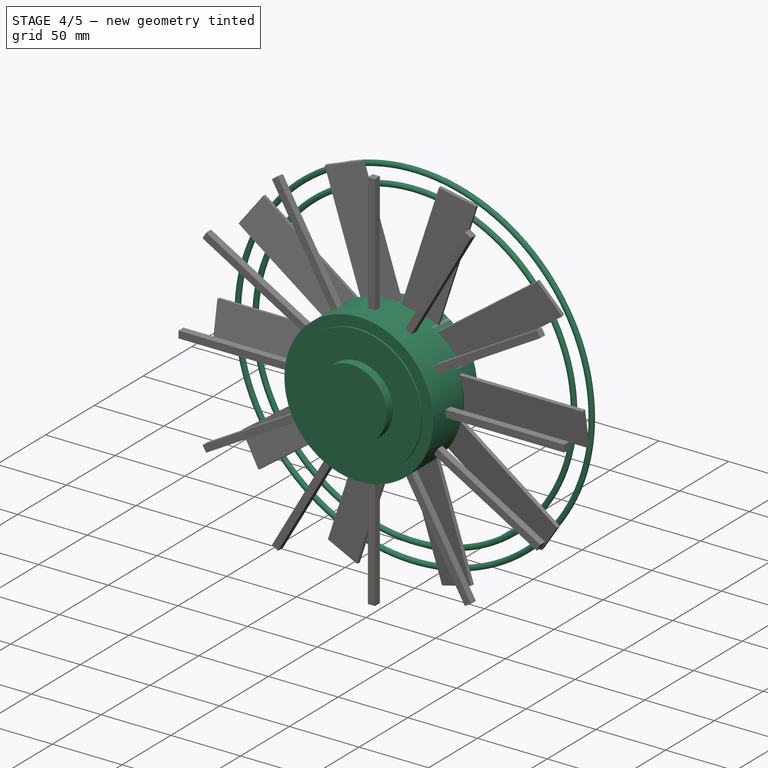
[diagram: stage 4 of 5 — iso view after this stage's code; geometry added in this stage tinted green]
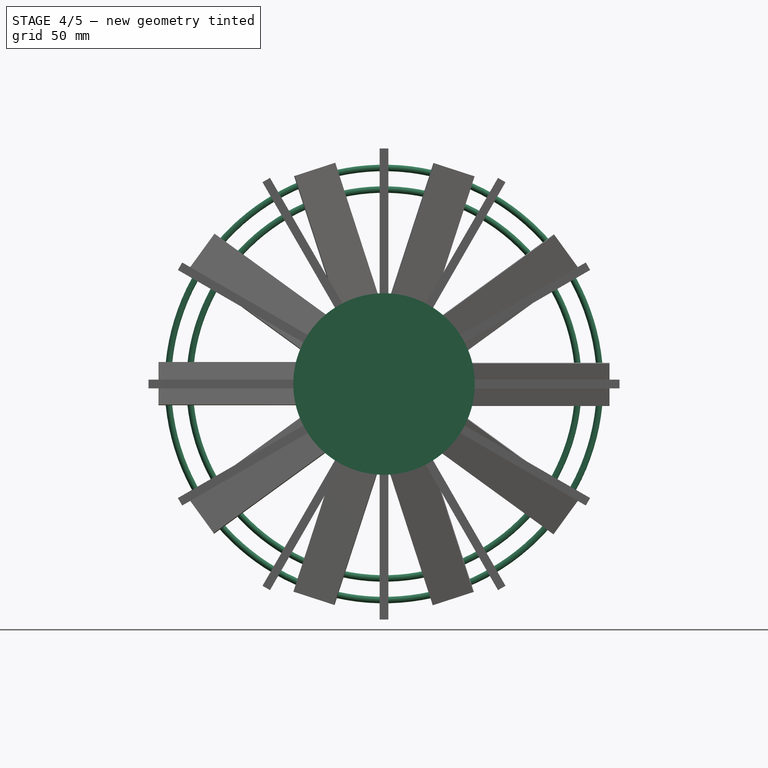
[diagram: stage 4 of 5 — front view after this stage's code; geometry added in this stage tinted green]
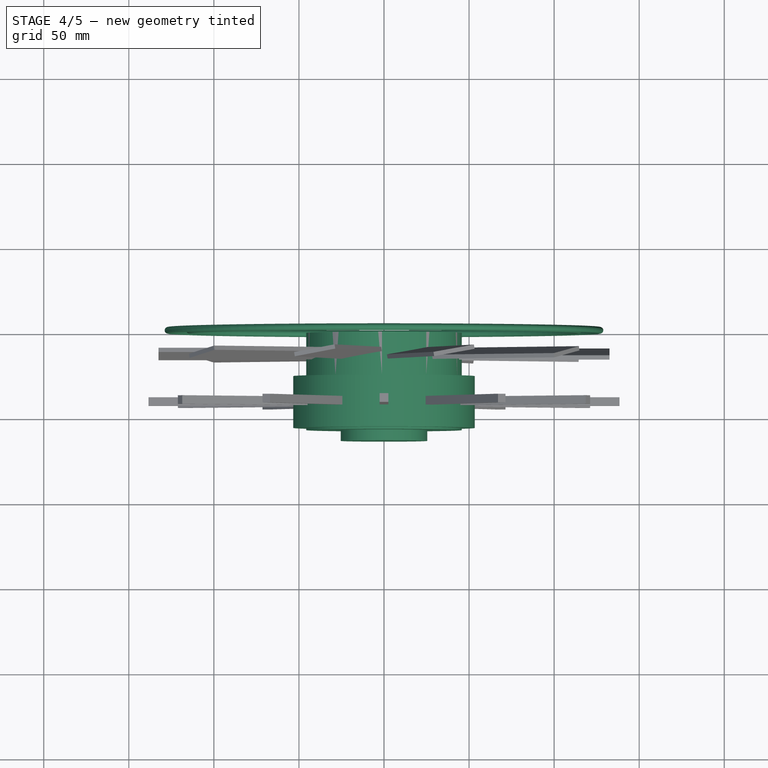
[diagram: stage 4 of 5 — top view after this stage's code; geometry added in this stage tinted green]
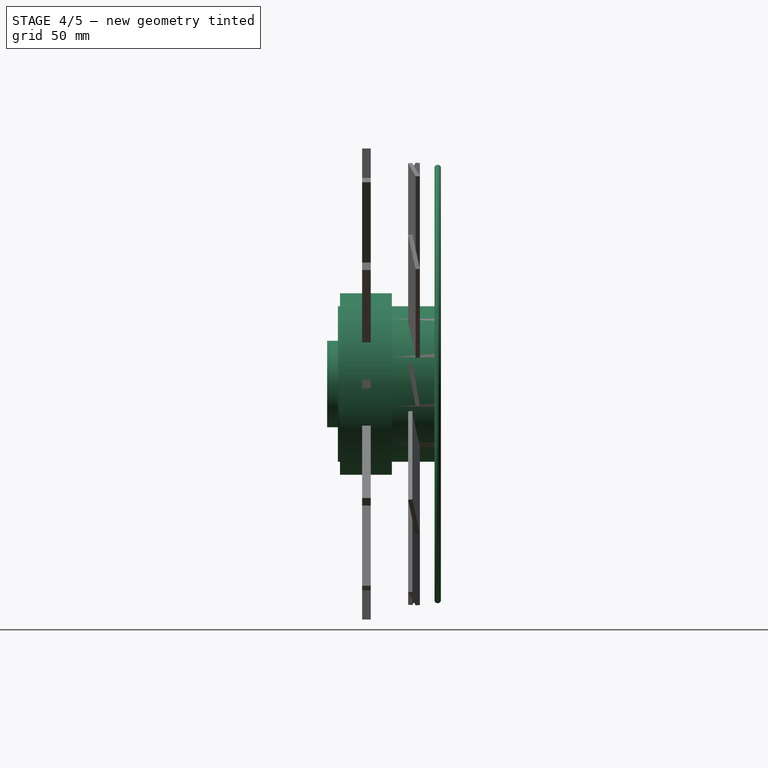
[diagram: stage 4 of 5 — right view after this stage's code; geometry added in this stage tinted green]
FEATURE [Part::Cylinder] Cylinder  label="motor_cilinder"
  Angle = 360
  Height = 57.15
  Placement = pos=(0,-1.524,0) rot=(1,0,0;1.5708rad)
  Radius = 45.72
FEATURE [Part::Cylinder] Cylinder001  label="motor_monticule"
  Angle = 360
  Height = 63.5
  Placement = pos=(0,-1.524,0) rot=(1,0,0;1.5708rad)
  Radius = 25.4
FEATURE [Part::MultiFuse] Fusion  label="motor"
  Shapes = -> [Cylinder001,Cylinder]
FEATURE [Part::Cylinder] Cylinder003  label="motor_support_out"
  Angle = 360
  Height = 30.48
  Placement = pos=(0,-26.924,0) rot=(1,0,0;1.5708rad)
  Radius = 53.34
FEATURE [Part::Torus] Torus004  label="grid_ring_5"
  Angle1 = -180
  Angle2 = 180
  Angle3 = 360
  Placement = pos=(0,0,0) rot=(1,0,0;1.5708rad)
  Radius1 = 114.3
  Radius2 = 1.905
FEATURE [Part::Torus] Torus005  label="grid_ring_6"
  Angle1 = -180
  Angle2 = 180
  Angle3 = 360
  Placement = pos=(0,0,0) rot=(1,0,0;1.5708rad)
  Radius1 = 127
  Radius2 = 1.905
FEATURE [Part::MultiFuse] Fusion002  label="motor_and_support"
  Shapes = -> [Fusion,Cylinder003]
FEATURE [Part::MultiFuse] Fusion002002  label="spokes_fusion"
  Shapes = -> [Pad001002,Pad001012,Pad001006,Pad001005,Pad001004,Pad001003,Pad001008,Pad001013,Pad001010,Pad001007,Pad001011,Pad001009]
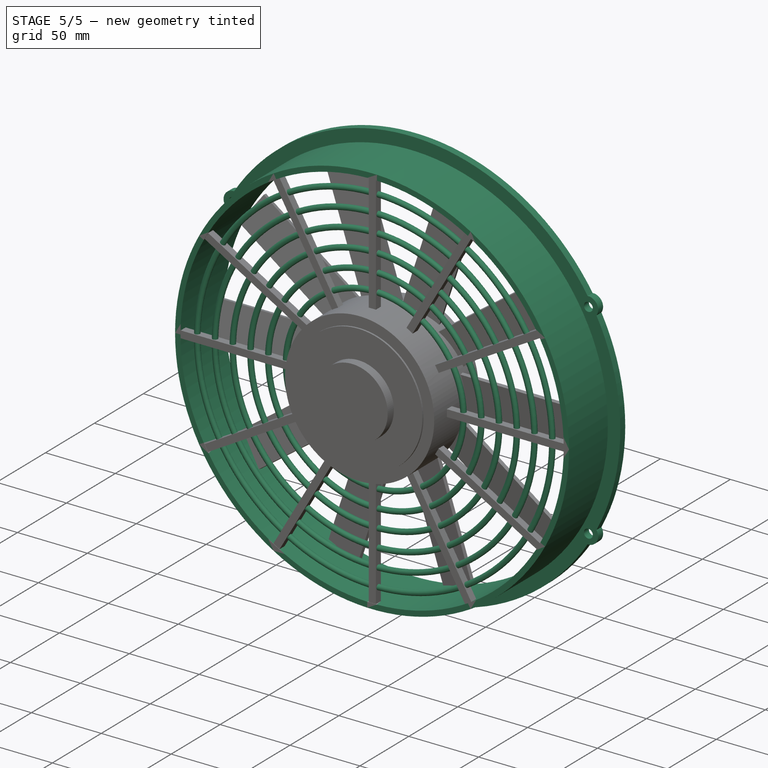
[diagram: stage 5 of 5 — iso view after this stage's code; geometry added in this stage tinted green]
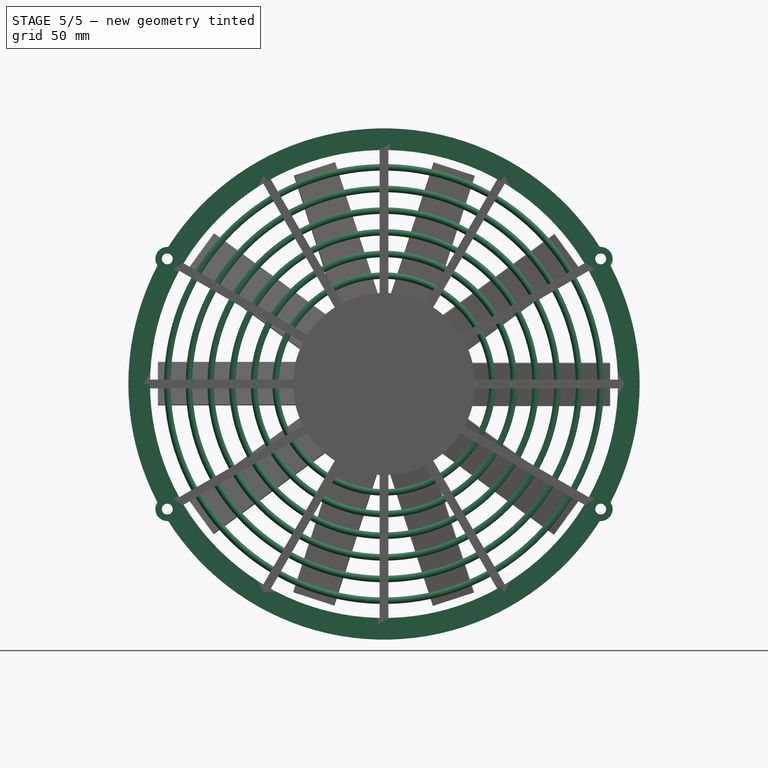
[diagram: stage 5 of 5 — front view after this stage's code; geometry added in this stage tinted green]
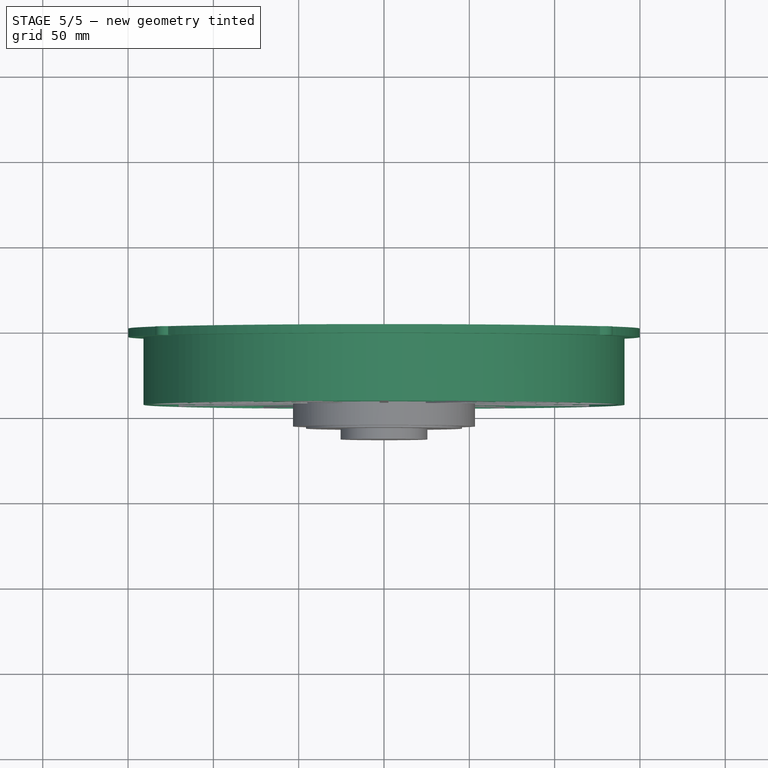
[diagram: stage 5 of 5 — top view after this stage's code; geometry added in this stage tinted green]
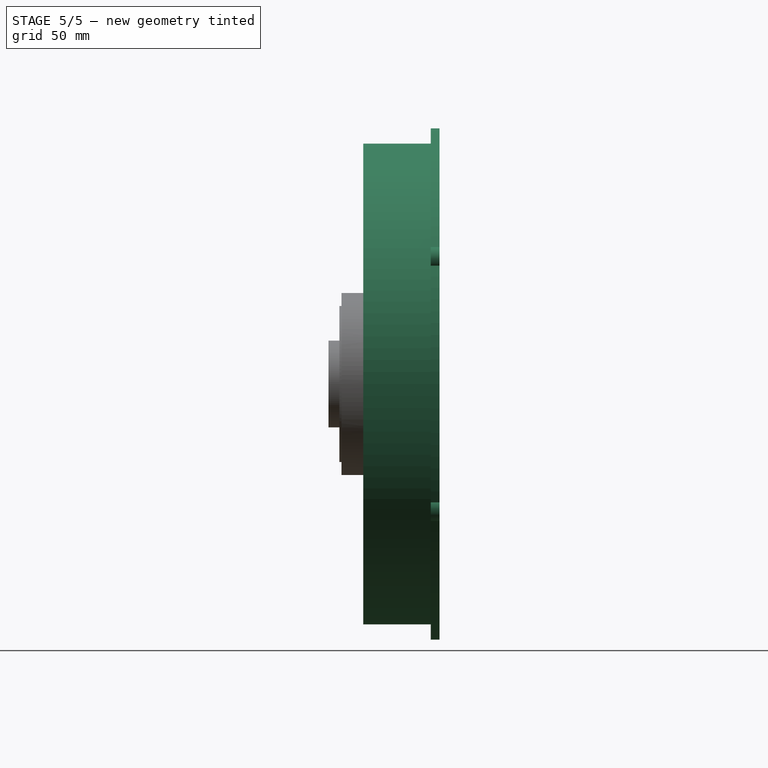
[diagram: stage 5 of 5 — right view after this stage's code; geometry added in this stage tinted green]
FEATURE [Sketcher::SketchObject] Sketch  label="bolt_holes_rim_sketch"
  Placement = pos=(0,0,0) rot=(1,0,0;1.5708rad)
  sketch-geometry (29):
    g0: LineSegment [constr] StartX=-127 StartY=73.3235 StartZ=0 EndX=127 EndY=73.3235 EndZ=0
    g1: LineSegment [constr] StartX=127 StartY=73.3235 StartZ=0 EndX=127 EndY=-73.3235 EndZ=0
    g2: LineSegment [constr] StartX=127 StartY=-73.3235 StartZ=0 EndX=-127 EndY=-73.3235 EndZ=0
    g3: LineSegment [constr] StartX=-127 StartY=-73.3235 StartZ=0 EndX=-127 EndY=73.3235 EndZ=0
    g4: GeomPoint [constr] X=0 Y=73.3235 Z=0
    g5: GeomPoint [constr] X=-127 Y=0 Z=0
    g6: LineSegment [constr] StartX=0 StartY=0 StartZ=0 EndX=0 EndY=73.3235 EndZ=0
    g7: LineSegment [constr] StartX=0 StartY=0 StartZ=0 EndX=-127 EndY=0 EndZ=0
    g8: Circle [constr] CenterX=0 CenterY=0 CenterZ=0 NormalX=0 NormalY=0 NormalZ=1 Radius=146.647
    g9: Circle CenterX=-127 CenterY=73.3235 CenterZ=0 NormalX=0 NormalY=0 NormalZ=1 Radius=3.175
    g10: Circle CenterX=127 CenterY=73.3235 CenterZ=0 NormalX=0 NormalY=0 NormalZ=1 Radius=3.175
    g11: Circle CenterX=127 CenterY=-73.3235 CenterZ=0 NormalX=0 NormalY=0 NormalZ=1 Radius=3.175
    g12: Circle CenterX=-127 CenterY=-73.3235 CenterZ=0 NormalX=0 NormalY=0 NormalZ=1 Radius=3.175
    g13: ArcOfCircle CenterX=-127 CenterY=73.3235 CenterZ=0 NormalX=0 NormalY=0 NormalZ=1 Radius=6.985 StartAngle=1.49796 EndAngle=3.73803
    g14: ArcOfCircle CenterX=127 CenterY=73.3235 CenterZ=0 NormalX=0 NormalY=0 NormalZ=1 Radius=6.985 StartAngle=5.68675 EndAngle=7.92682
    g15: ArcOfCircle CenterX=127 CenterY=-73.3235 CenterZ=0 NormalX=0 NormalY=0 NormalZ=1 Radius=6.985 StartAngle=4.63955 EndAngle=6.87962
    g16: ArcOfCircle CenterX=-127 CenterY=-73.3235 CenterZ=0 NormalX=0 NormalY=0 NormalZ=1 Radius=6.985 StartAngle=2.54516 EndAngle=4.78523
    g17: ArcOfCircle CenterX=0 CenterY=0 CenterZ=0 NormalX=0 NormalY=0 NormalZ=1 Radius=149.822 StartAngle=0.565576 EndAngle=2.57602
    g18: ArcOfCircle CenterX=0 CenterY=0 CenterZ=0 NormalX=0 NormalY=0 NormalZ=1 Radius=149.822 StartAngle=3.70717 EndAngle=5.71761
    g19: ArcOfCircle CenterX=0 CenterY=0 CenterZ=0 NormalX=0 NormalY=0 NormalZ=1 Radius=149.822 StartAngle=2.65997 EndAngle=3.62321
    g20: ArcOfCircle CenterX=0 CenterY=0 CenterZ=0 NormalX=0 NormalY=0 NormalZ=1 Radius=149.822 StartAngle=5.80156 EndAngle=6.76481
    g21: Circle CenterX=0 CenterY=0 CenterZ=0 NormalX=0 NormalY=0 NormalZ=1 Radius=137.122
    g22: ArcOfCircle [constr] CenterX=0 CenterY=0 CenterZ=0 NormalX=0 NormalY=0 NormalZ=1 Radius=149.822 StartAngle=2.57602 EndAngle=2.65997
    g23: GeomPoint [constr] X=-129.75 Y=74.911 Z=0
    g24: GeomPoint [constr] X=-133.049 Y=76.816 Z=0
    g25: LineSegment [constr] StartX=0 StartY=0 StartZ=0 EndX=-133.049 EndY=76.816 EndZ=0
    g26: GeomPoint [constr] X=-118.751 Y=68.561 Z=0
    g27: GeomPoint [constr] X=-129.75 Y=74.911 Z=0
    g28: GeomPoint [constr] X=-124.25 Y=71.736 Z=0
  constraints (71):
    c: Coincident(g0,g1)
    c: Coincident(g1,g2)
    c: Coincident(g2,g3)
    c: Coincident(g3,g0)
    c: Horizontal(g0)
    c: Horizontal(g2)
    c: Vertical(g1)
    c: Vertical(g3)
    c: PointOnObject(g4,g0)
    c: PointOnObject(g5,g3)
    c: Symmetric(g2,g0,g5)
    c: Symmetric(g0,g0,g4)
    c: Coincident(g6,g-1)
    c: Coincident(g6,g4)
    c: Vertical(g6)
    c: Coincident(g7,g-1)
    c: Coincident(g7,g5)
    c: Horizontal(g7)
    c: Coincident(g8,g-1)
    c: PointOnObject(g0,g8)
    c: Coincident(g9,g0)
    c: Coincident(g10,g0)
    c: Coincident(g11,g1)
    c: Coincident(g12,g2)
    c: Equal(g9,g10)
    c: Equal(g10,g11)
    c: Equal(g11,g12)
    c: Coincident(g13,g0)
    c: Coincident(g14,g0)
    c: Coincident(g15,g1)
    c: Coincident(g16,g2)
    c: Equal(g13,g14)
    c: Equal(g14,g15)
    c: Equal(g15,g16)
    c: Coincident(g17,g-1)
    c: Coincident(g17,g13)
    c: Coincident(g17,g14)
    c: Coincident(g18,g-1)
    c: Coincident(g18,g16)
    c: Coincident(g18,g15)
    c: Coincident(g19,g-1)
    c: Coincident(g19,g13)
    c: Coincident(g19,g16)
    c: Coincident(g20,g-1)
    c: Coincident(g20,g14)
    c: Coincident(g20,g15)
    c: Coincident(g21,g-1)
    c: Equal(g19,g17)
    c: Equal(g17,g20)
    c: Equal(g20,g18)
    c: Coincident(g22,g-1)
    c: Coincident(g22,g13)
    c: Coincident(g22,g13)
    c: PointOnObject(g23,g22)
    c: PointOnObject(g24,g13)
    c: Coincident(g25,g-1)
    c: Coincident(g25,g24)
    c: PointOnObject(g23,g25)
    c: PointOnObject(g0,g25)
    c: PointOnObject(g26,g25)
    c: PointOnObject(g26,g21)
    c: PointOnObject(g27,g9)
    c: PointOnObject(g27,g25)
    c: Distance(g0,g27) = 3.175
    c: PointOnObject(g28,g9)
    c: PointOnObject(g28,g25)
    c: Distance(g28,g26) = 6.35
    c: Distance(g26,g23) = 12.7
    c: Distance(g27,g24) = 3.81
    c: Angle(g25) = 2.61799
    c: Distance(g0) = 254
FEATURE [PartDesign::Pad] Pad  label="bolt_holes_rim_pad"
  Length = 5.08
  Length2 = 100
  Placement = pos=(0,0,0) rot=(1,0,0;1.5708rad)
  Sketch = -> Sketch
  Type = 0
FEATURE [Sketcher::SketchObject] Sketch001  label="outer_skirt_sketch"
  ExternalGeometry = -> [Pad]
  Placement = pos=(0,-5.08,0) rot=(1,0,0;1.5708rad)
  Support = -> Pad [Face15]
  sketch-geometry (4):
    g0: LineSegment [constr] StartX=0 StartY=0 StartZ=0 EndX=-137.122 EndY=0 EndZ=0
    g1: LineSegment [constr] StartX=-137.122 StartY=0 StartZ=0 EndX=-140.932 EndY=0 EndZ=0
    g2: Circle CenterX=0 CenterY=0 CenterZ=0 NormalX=0 NormalY=0 NormalZ=1 Radius=137.122
    g3: Circle CenterX=0 CenterY=0 CenterZ=0 NormalX=0 NormalY=0 NormalZ=1 Radius=140.932
  constraints (10):
    c: Coincident(g0,g-1)
    c: PointOnObject(g0,g-3)
    c: Horizontal(g0)
    c: Coincident(g1,g0)
    c: PointOnObject(g1,g-1)
    c: Distance(g1) = 3.81
    c: Coincident(g2,g-1)
    c: PointOnObject(g0,g2)
    c: Coincident(g3,g-1)
    c: PointOnObject(g1,g3)
FEATURE [PartDesign::Pad] Pad001  label="outer_skirt_pad"
  Length = 39.624
  Length2 = 100
  Placement = pos=(0,0,0) rot=(1,0,0;1.5708rad)
  Sketch = -> Sketch001
  Type = 0
FEATURE [Part::Torus] Torus  label="grid_ring_1"
  Angle1 = -180
  Angle2 = 180
  Angle3 = 360
  Placement = pos=(0,0,0) rot=(1,0,0;1.5708rad)
  Radius1 = 63.5
  Radius2 = 1.905
FEATURE [Part::Torus] Torus001  label="grid_ring_2"
  Angle1 = -180
  Angle2 = 180
  Angle3 = 360
  Placement = pos=(0,0,0) rot=(1,0,0;1.5708rad)
  Radius1 = 76.2
  Radius2 = 1.905
FEATURE [Part::Torus] Torus002  label="grid_ring_3"
  Angle1 = -180
  Angle2 = 180
  Angle3 = 360
  Placement = pos=(0,0,0) rot=(1,0,0;1.5708rad)
  Radius1 = 88.9
  Radius2 = 1.905
FEATURE [Part::Torus] Torus003  label="grid_ring_4"
  Angle1 = -180
  Angle2 = 180
  Angle3 = 360
  Placement = pos=(0,0,0) rot=(1,0,0;1.5708rad)
  Radius1 = 101.6
  Radius2 = 1.905
FEATURE [Part::MultiFuse] Fusion001  label="grid_rings"
  Placement = pos=(0,-41.91,0) rot=(0,0,1;0rad)
  Shapes = -> [Torus005,Torus004,Torus003,Torus002,Torus001,Torus]
FEATURE [Part::MultiFuse] Fusion002002003  label="fan_parts_fusion"
  Shapes = -> [Pad001,Fusion001,Fusion002,Fusion002002,Fusion002002002]
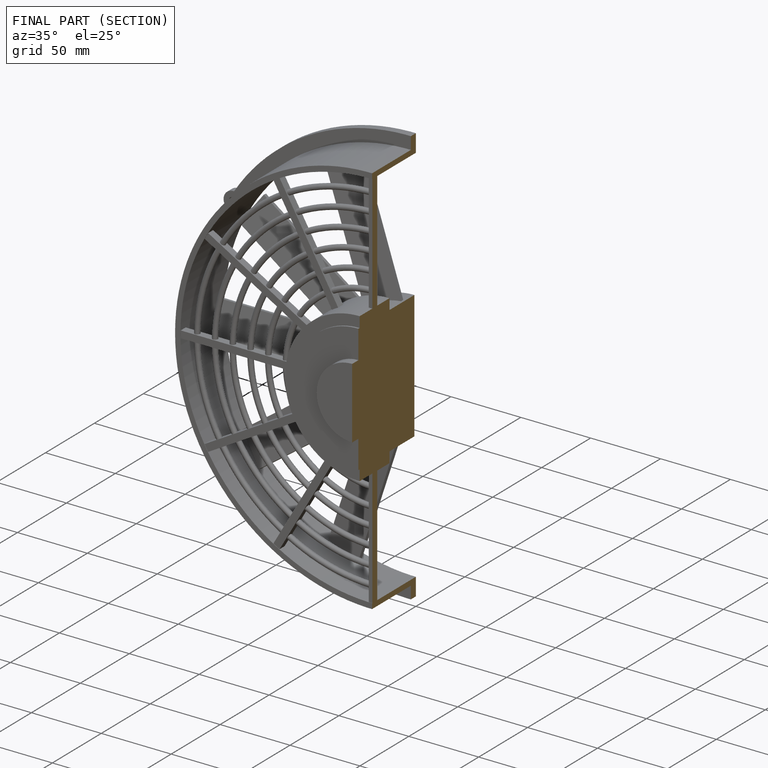
[diagram: finished part — half-section view (interior)]
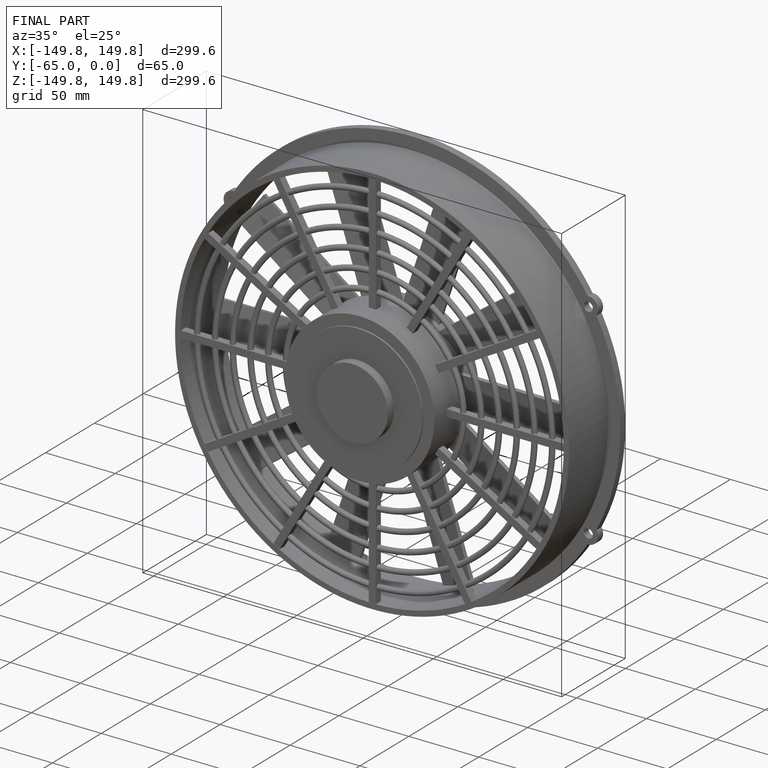
[diagram: finished part — iso view with bounding-box wireframe]
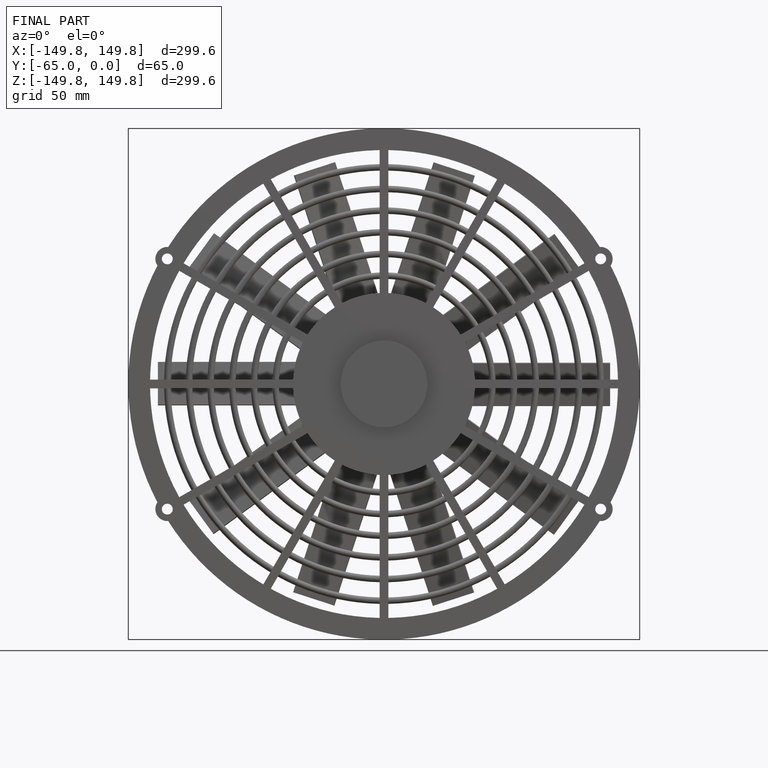
[diagram: finished part — front view with bounding-box wireframe]
